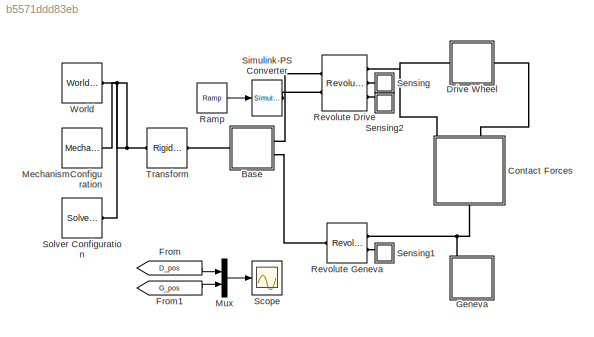
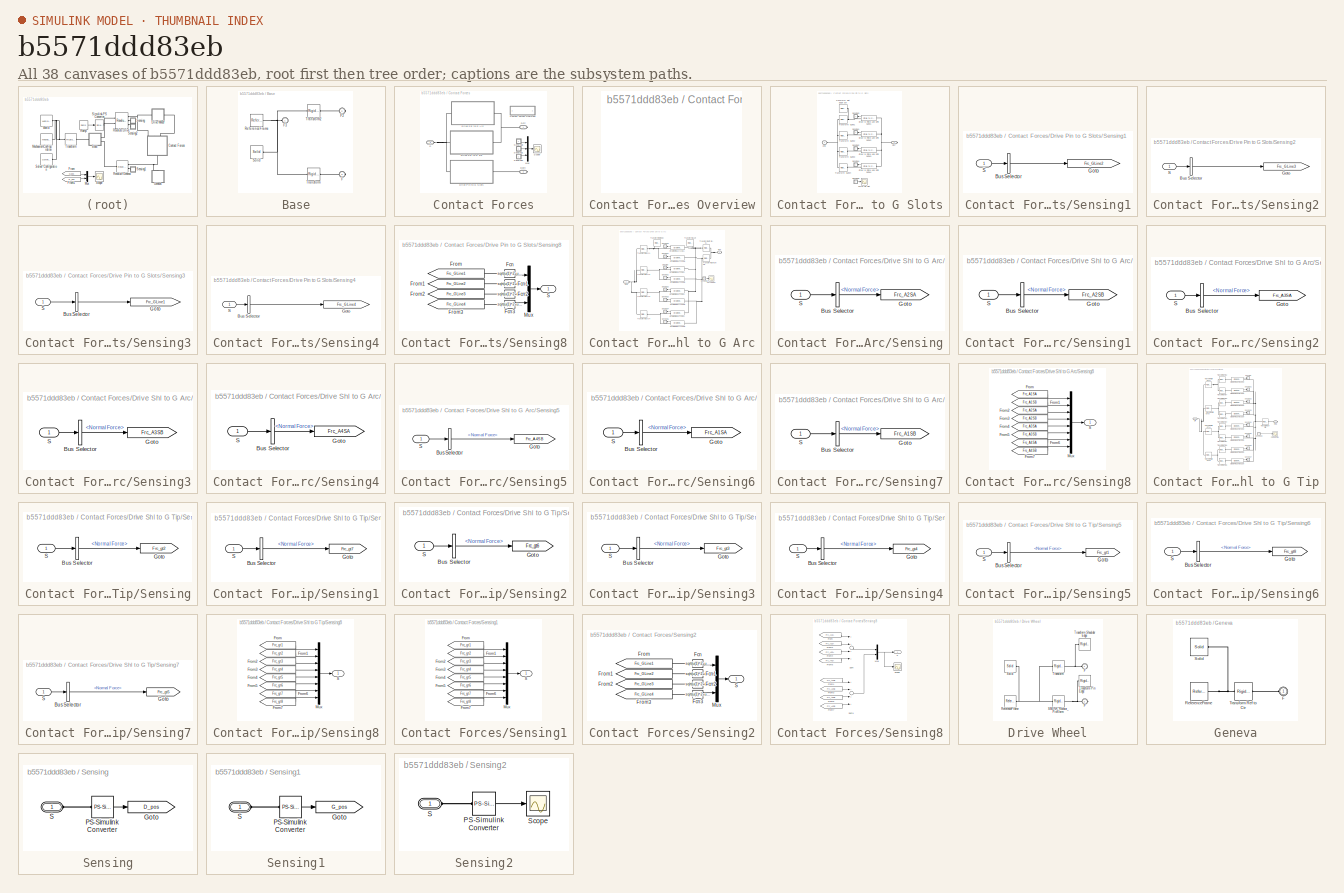
[diagram: thumbnail index - all 38 canvases of the model, root first then tree order]
MODEL slx_b5571ddd83eb
KIND model
CONFIG PostLoadFcn = set_param(bdroot,'IgnoredZcDiagnostic','none')\nwarning off sm:compiler:topologyAnalysis:DanglingBlock
CONFIG StartFcn = tic;
CONFIG StopFcn = Elapsed_Sim_Time = toc;\ndisp(['Elapsed Sim Time = ' num2str(Elapsed_Sim_Time)]);\n
BLOCK [SubSystem] Base
  Ports = [0, 0, 0, 0, 0, 1, 2]
  RequestExecContextInheritance = off
BLOCK [PMIOPort] Base/F
  Port = 3
  Side = Right
BLOCK [PMIOPort] Base/F2
  Port = 2
  Side = Right
BLOCK [PMIOPort] Base/F3
  Port = 1
  Side = Left
BLOCK [Reference] Base/ReferenceFrame  REF=sm_lib/Frames and
Transforms/Reference
Frame
  BlockFunction = simmechanics.library.frames_transforms.reference_frame
  ClassName = ReferenceFrame
  Ports = [0, 0, 0, 0, 0, 0, 1]
  SourceBlock = sm_lib/Frames and\nTransforms/Reference\nFrame
  SourceType = Reference\nFrame
BLOCK [Reference] Base/Solid  REF=sm_lib/Body Elements/Solid
  BlockFunction = simmechanics.library.body_elements.solid
  BrickDimensionUnits = m
  BrickDimensions = [1 1 1]
  CenterOfMass = [0.22415415704528135 0 -24.782168314450626]
  CenterOfMassUnits = mm
  ClassName = Solid
  CylinderLength = 1
  CylinderLengthUnits = m
  CylinderRadius = 1
  CylinderRadiusUnits = m
  Density = 1000
  DensityBased = on
  DensityUnits = kg/(m^3)
  EllipsoidRadii = [1 1 1]
  EllipsoidRadiiUnits = m
  ExtGeomFileName = Base_Default_sldprt.STL
  ExtGeomFileType = STL
  ExtGeomFileUnits = mm
  ExtrusionCrossSection = [1 1; -1 1; -1 -1; 1 -1]
  ExtrusionCrossSectionUnits = m
  ExtrusionLength = 1
  ExtrusionLengthUnits = m
  GeometryShape = FromFile
  GraphicAmbientColor = [0.15 0.15 0.15 1.0]
  GraphicDiffuseColor = [0.82745098039215681 0.82745098039215681 0.81960784313725488]
  GraphicEmissiveColor = [0.0 0.0 0.0 1.0]
  GraphicOpacity = 1
  GraphicShininess = 75
  GraphicSpecularColor = [0.5 0.5 0.5 1.0]
  GraphicType = FromGeometry
  GraphicVisPropType = SimpleVisualProperties
  InertiaType = Custom
  MarkerShape = Sphere
  MarkerSize = 10
  MarkerSizeUnits = m
  Mass = 5.6121441650895836
  MassUnits = kg
  MomentsOfInertia = [57246.923822174664 131168.16755878026 187513.90774897448]
  MomentsOfInertiaUnits = kg*mm^2
  PolygonNumSides = 3
  PolygonOuterRadius = 1
  PolygonOuterRadiusUnits = m
  Ports = [0, 0, 0, 0, 0, 0, 1]
  ProductsOfInertia = [0 -24.879239071091789 0]
  ProductsOfInertiaUnits = kg*mm^2
  RectangleSize = [1 1]
  RectangleSizeUnits = m
  RevolutionAngle = 180
  RevolutionAngleUnits = deg
  RevolutionCrossSection = [1 1; 1 -1; 2 -1; 2 1]
  RevolutionCrossSectionUnits = m
  RevolutionExtent = Full
  SourceBlock = sm_lib/Body Elements/Solid
  SourceType = Solid
  SphereRadius = 1
  SphereRadiusUnits = m
BLOCK [Reference] Base/Transform  REF=sm_lib/Frames and
Transforms/Rigid
Transform
  BaseAlignAxisA = +Y
  BaseAlignAxisB = +Z
  BlockFunction = simmechanics.library.frames_transforms.rigid_transform
  ClassName = RigidTransform
  FollAlignAxisA = +X
  FollAlignAxisB = +Y
  Ports = [0, 0, 0, 0, 0, 1, 1]
  RotationAngle = 0
  RotationAngleUnits = rad
  RotationArbitraryAxis = [0 0 0]
  RotationMethod = ArbitraryAxis
  RotationStandardAxis = +Z
  SourceBlock = sm_lib/Frames and\nTransforms/Rigid\nTransform
  SourceType = Rigid\nTransform
  TranslationCartesianOffset = [100 0 0]
  TranslationLengthUnit = mm
  TranslationMethod = Cartesian
  TranslationROffset = 0
  TranslationROffsetUnits = m
  TranslationStandardAxis = +Z
  TranslationStandardOffset = 0
  TranslationThetaOffset = 0
  TranslationThetaOffsetUnits = deg
  TranslationZOffset = 0
  TranslationZOffsetUnits = m
BLOCK [Reference] Base/Transform2  REF=sm_lib/Frames and
Transforms/Rigid
Transform
  BaseAlignAxisA = +Y
  BaseAlignAxisB = +Z
  BlockFunction = simmechanics.library.frames_transforms.rigid_transform
  ClassName = RigidTransform
  FollAlignAxisA = +X
  FollAlignAxisB = +Y
  Ports = [0, 0, 0, 0, 0, 1, 1]
  RotationAngle = 3.1415926535897931
  RotationAngleUnits = rad
  RotationArbitraryAxis = [1 0 0]
  RotationMethod = ArbitraryAxis
  RotationStandardAxis = +Z
  SourceBlock = sm_lib/Frames and\nTransforms/Rigid\nTransform
  SourceType = Rigid\nTransform
  TranslationCartesianOffset = [-99.999999999999986 0 57.42640687119286]
  TranslationLengthUnit = mm
  TranslationMethod = Cartesian
  TranslationROffset = 0
  TranslationROffsetUnits = m
  TranslationStandardAxis = +Z
  TranslationStandardOffset = 0
  TranslationThetaOffset = 0
  TranslationThetaOffsetUnits = deg
  TranslationZOffset = 0
  TranslationZOffsetUnits = m
BLOCK [SubSystem] Contact Forces
  Ports = [0, 0, 0, 0, 0, 1, 2]
  RequestExecContextInheritance = off
BLOCK [SubSystem] Contact Forces/Contact Forces Overview
  OpenFcn = web(which('Geneva_Drive_Contact_Forces.html'));
  Ports = []
  RequestExecContextInheritance = off
BLOCK [PMIOPort] Contact Forces/Dctr
  Port = 1
  Side = Right
BLOCK [PMIOPort] Contact Forces/Dpin
  Port = 2
  Side = Right
BLOCK [SubSystem] Contact Forces/Drive Pin to G Slots
  Ports = [0, 0, 0, 0, 0, 1, 1]
  RequestExecContextInheritance = off
BLOCK [PMIOPort] Contact Forces/Drive Pin to G Slots/CirF
  Port = 2
  Side = Right
BLOCK [Reference] Contact Forces/Drive Pin to G Slots/Circle to Finite Line DPin GLine1  REF=Contact_Forces_Lib/2D/Circle to Finite Line Force
  Ports = [0, 1, 0, 0, 0, 1, 1]
  SourceBlock = Contact_Forces_Lib/2D/Circle to Finite Line Force
  SourceType = Circle on Finite Line Force
  b_contact = b_contact
  circle_rad = r_drive_pin
  custom_param_1 = 1
  custom_param_2 = 1
  force_law = Linear
  friction_law = None
  k_contact = k_contact
  line_depth = d_genv_lin
  line_length = l_genv_lin
  mu_kinetic = 0.5
  mu_static = 0.7
  pen_exponent = 1
  pen_full_damp_F = 1e-4
  v_thr = 0.001
BLOCK [Reference] Contact Forces/Drive Pin to G Slots/Circle to Finite Line DPin GLine2  REF=Contact_Forces_Lib/2D/Circle to Finite Line Force
  Ports = [0, 1, 0, 0, 0, 1, 1]
  SourceBlock = Contact_Forces_Lib/2D/Circle to Finite Line Force
  SourceType = Circle on Finite Line Force
  b_contact = b_contact
  circle_rad = r_drive_pin
  custom_param_1 = 1
  custom_param_2 = 1
  force_law = Linear
  friction_law = None
  k_contact = k_contact
  line_depth = d_genv_lin
  line_length = l_genv_lin
  mu_kinetic = 0.5
  mu_static = 0.7
  pen_exponent = 1
  pen_full_damp_F = 1e-4
  v_thr = 0.001
BLOCK [Reference] Contact Forces/Drive Pin to G Slots/Circle to Finite Line DPin GLine3  REF=Contact_Forces_Lib/2D/Circle to Finite Line Force
  Ports = [0, 1, 0, 0, 0, 1, 1]
  SourceBlock = Contact_Forces_Lib/2D/Circle to Finite Line Force
  SourceType = Circle on Finite Line Force
  b_contact = b_contact
  circle_rad = r_drive_pin
  custom_param_1 = 1
  custom_param_2 = 1
  force_law = Linear
  friction_law = None
  k_contact = k_contact
  line_depth = d_genv_lin
  line_length = l_genv_lin
  mu_kinetic = 0.5
  mu_static = 0.7
  pen_exponent = 1
  pen_full_damp_F = 1e-4
  v_thr = 0.001
BLOCK [Reference] Contact Forces/Drive Pin to G Slots/Circle to Finite Line DPin GLine4  REF=Contact_Forces_Lib/2D/Circle to Finite Line Force
  Ports = [0, 1, 0, 0, 0, 1, 1]
  SourceBlock = Contact_Forces_Lib/2D/Circle to Finite Line Force
  SourceType = Circle on Finite Line Force
  b_contact = b_contact
  circle_rad = r_drive_pin
  custom_param_1 = 1
  custom_param_2 = 1
  force_law = Linear
  friction_law = None
  k_contact = k_contact
  line_depth = d_genv_lin
  line_length = l_genv_lin
  mu_kinetic = 0.5
  mu_static = 0.7
  pen_exponent = 1
  pen_full_damp_F = 1e-4
  v_thr = 0.001
BLOCK [Scope] Contact Forces/Drive Pin to G Slots/Force Pin Slot
  DataFormat = StructureWithTime
  Floating = off
  LimitDataPoints = off
  NumInputPorts = 1
  Ports = [1]
  SampleTime = 0
  ShowLegends = off
  YMax = 60
  YMin = 0
  ZoomMode = yonly
BLOCK [PMIOPort] Contact Forces/Drive Pin to G Slots/LinB
  Port = 1
  Side = Left
BLOCK [SubSystem] Contact Forces/Drive Pin to G Slots/Sensing1
  Ports = [1]
  RequestExecContextInheritance = off
BLOCK [BusSelector] Contact Forces/Drive Pin to G Slots/Sensing1/Bus Selector
  OutputAsBus = on
  OutputSignals = FCir.Fx,FCir.Fy
  Ports = [1, 1]
BLOCK [Goto] Contact Forces/Drive Pin to G Slots/Sensing1/Goto
  GotoTag = Frc_GLine2
  TagVisibility = global
BLOCK [Inport] Contact Forces/Drive Pin to G Slots/Sensing1/S
  IconDisplay = Port number
BLOCK [SubSystem] Contact Forces/Drive Pin to G Slots/Sensing2
  Ports = [1]
  RequestExecContextInheritance = off
BLOCK [BusSelector] Contact Forces/Drive Pin to G Slots/Sensing2/Bus Selector
  OutputAsBus = on
  OutputSignals = FCir.Fx,FCir.Fy
  Ports = [1, 1]
BLOCK [Goto] Contact Forces/Drive Pin to G Slots/Sensing2/Goto
  GotoTag = Frc_GLine3
  TagVisibility = global
BLOCK [Inport] Contact Forces/Drive Pin to G Slots/Sensing2/S
  IconDisplay = Port number
BLOCK [SubSystem] Contact Forces/Drive Pin to G Slots/Sensing3
  Ports = [1]
  RequestExecContextInheritance = off
BLOCK [BusSelector] Contact Forces/Drive Pin to G Slots/Sensing3/Bus Selector
  OutputAsBus = on
  OutputSignals = FCir.Fx,FCir.Fy
  Ports = [1, 1]
BLOCK [Goto] Contact Forces/Drive Pin to G Slots/Sensing3/Goto
  GotoTag = Frc_GLine1
  TagVisibility = global
BLOCK [Inport] Contact Forces/Drive Pin to G Slots/Sensing3/S
  IconDisplay = Port number
BLOCK [SubSystem] Contact Forces/Drive Pin to G Slots/Sensing4
  Ports = [1]
  RequestExecContextInheritance = off
BLOCK [BusSelector] Contact Forces/Drive Pin to G Slots/Sensing4/Bus Selector
  OutputAsBus = on
  OutputSignals = FCir.Fx,FCir.Fy
  Ports = [1, 1]
BLOCK [Goto] Contact Forces/Drive Pin to G Slots/Sensing4/Goto
  GotoTag = Frc_GLine4
  TagVisibility = global
BLOCK [Inport] Contact Forces/Drive Pin to G Slots/Sensing4/S
  IconDisplay = Port number
BLOCK [SubSystem] Contact Forces/Drive Pin to G Slots/Sensing8
  Ports = [0, 1]
  RequestExecContextInheritance = off
BLOCK [Fcn] Contact Forces/Drive Pin to G Slots/Sensing8/Fcn
  Expr = sqrt(u(1)^2+u(2)^2)
BLOCK [Fcn] Contact Forces/Drive Pin to G Slots/Sensing8/Fcn1
  Expr = sqrt(u(1)^2+u(2)^2)
BLOCK [Fcn] Contact Forces/Drive Pin to G Slots/Sensing8/Fcn2
  Expr = sqrt(u(1)^2+u(2)^2)
BLOCK [Fcn] Contact Forces/Drive Pin to G Slots/Sensing8/Fcn3
  Expr = sqrt(u(1)^2+u(2)^2)
BLOCK [From] Contact Forces/Drive Pin to G Slots/Sensing8/From
  GotoTag = Frc_GLine1
  TagVisibility = global
BLOCK [From] Contact Forces/Drive Pin to G Slots/Sensing8/From1
  GotoTag = Frc_GLine2
  TagVisibility = global
BLOCK [From] Contact Forces/Drive Pin to G Slots/Sensing8/From2
  GotoTag = Frc_GLine3
  TagVisibility = global
BLOCK [From] Contact Forces/Drive Pin to G Slots/Sensing8/From3
  GotoTag = Frc_GLine4
  TagVisibility = global
BLOCK [Mux] Contact Forces/Drive Pin to G Slots/Sensing8/Mux
  DisplayOption = bar
  Ports = [4, 1]
BLOCK [Outport] Contact Forces/Drive Pin to G Slots/Sensing8/S
  IconDisplay = Port number
BLOCK [Reference] Contact Forces/Drive Pin to G Slots/Transform GLine1  REF=sm_lib/Frames and
Transforms/Rigid
Transform
  BaseAlignAxisA = +Y
  BaseAlignAxisB = +Z
  BlockFunction = simmechanics.library.frames_transforms.rigid_transform
  ClassName = RigidTransform
  FollAlignAxisA = +X
  FollAlignAxisB = +Y
  Ports = [0, 0, 0, 0, 0, 1, 1]
  RotationAngle = 315
  RotationAngleUnits = deg
  RotationArbitraryAxis = [0 0 1]
  RotationMethod = StandardAxis
  RotationStandardAxis = +Z
  SourceBlock = sm_lib/Frames and\nTransforms/Rigid\nTransform
  SourceType = Rigid\nTransform
  TranslationCartesianOffset = [0 0 0]
  TranslationLengthUnit = m
  TranslationMethod = Cylindrical
  TranslationROffset = -0.02
  TranslationROffsetUnits = m
  TranslationStandardAxis = +Z
  TranslationStandardOffset = 0
  TranslationThetaOffset = 315
  TranslationThetaOffsetUnits = deg
  TranslationZOffset = 0
  TranslationZOffsetUnits = m
BLOCK [Reference] Contact Forces/Drive Pin to G Slots/Transform GLine2  REF=sm_lib/Frames and
Transforms/Rigid
Transform
  BaseAlignAxisA = +Y
  BaseAlignAxisB = +Z
  BlockFunction = simmechanics.library.frames_transforms.rigid_transform
  ClassName = RigidTransform
  FollAlignAxisA = +X
  FollAlignAxisB = +Y
  Ports = [0, 0, 0, 0, 0, 1, 1]
  RotationAngle = 135
  RotationAngleUnits = deg
  RotationArbitraryAxis = [0 0 1]
  RotationMethod = StandardAxis
  RotationStandardAxis = +Z
  SourceBlock = sm_lib/Frames and\nTransforms/Rigid\nTransform
  SourceType = Rigid\nTransform
  TranslationCartesianOffset = [0 0 0]
  TranslationLengthUnit = m
  TranslationMethod = Cylindrical
  TranslationROffset = -0.02
  TranslationROffsetUnits = m
  TranslationStandardAxis = +Z
  TranslationStandardOffset = 0
  TranslationThetaOffset = 135
  TranslationThetaOffsetUnits = deg
  TranslationZOffset = 0
  TranslationZOffsetUnits = m
BLOCK [Reference] Contact Forces/Drive Pin to G Slots/Transform GLine3  REF=sm_lib/Frames and
Transforms/Rigid
Transform
  BaseAlignAxisA = +Y
  BaseAlignAxisB = +Z
  BlockFunction = simmechanics.library.frames_transforms.rigid_transform
  ClassName = RigidTransform
  FollAlignAxisA = +X
  FollAlignAxisB = +Y
  Ports = [0, 0, 0, 0, 0, 1, 1]
  RotationAngle = 225
  RotationAngleUnits = deg
  RotationArbitraryAxis = [0 0 1]
  RotationMethod = StandardAxis
  RotationStandardAxis = +Z
  SourceBlock = sm_lib/Frames and\nTransforms/Rigid\nTransform
  SourceType = Rigid\nTransform
  TranslationCartesianOffset = [0 0 0]
  TranslationLengthUnit = m
  TranslationMethod = Cylindrical
  TranslationROffset = -0.02
  TranslationROffsetUnits = m
  TranslationStandardAxis = +Z
  TranslationStandardOffset = 0
  TranslationThetaOffset = 225
  TranslationThetaOffsetUnits = deg
  TranslationZOffset = 0
  TranslationZOffsetUnits = m
BLOCK [Reference] Contact Forces/Drive Pin to G Slots/Transform GLine4  REF=sm_lib/Frames and
Transforms/Rigid
Transform
  BaseAlignAxisA = +Y
  BaseAlignAxisB = +Z
  BlockFunction = simmechanics.library.frames_transforms.rigid_transform
  ClassName = RigidTransform
  FollAlignAxisA = +X
  FollAlignAxisB = +Y
  Ports = [0, 0, 0, 0, 0, 1, 1]
  RotationAngle = 45
  RotationAngleUnits = deg
  RotationArbitraryAxis = [0 0 1]
  RotationMethod = StandardAxis
  RotationStandardAxis = +Z
  SourceBlock = sm_lib/Frames and\nTransforms/Rigid\nTransform
  SourceType = Rigid\nTransform
  TranslationCartesianOffset = [0 0 0]
  TranslationLengthUnit = m
  TranslationMethod = Cylindrical
  TranslationROffset = -0.02
  TranslationROffsetUnits = m
  TranslationStandardAxis = +Z
  TranslationStandardOffset = 0
  TranslationThetaOffset = 45
  TranslationThetaOffsetUnits = deg
  TranslationZOffset = 0
  TranslationZOffsetUnits = m
BLOCK [Reference] Contact Forces/Drive Pin to G Slots/Transform Slot Edge SW  REF=sm_lib/Frames and
Transforms/Rigid
Transform
  BaseAlignAxisA = +Y
  BaseAlignAxisB = +Z
  BlockFunction = simmechanics.library.frames_transforms.rigid_transform
  ClassName = RigidTransform
  FollAlignAxisA = +X
  FollAlignAxisB = +Y
  Ports = [0, 0, 0, 0, 0, 1, 1]
  RotationAngle = 45
  RotationAngleUnits = deg
  RotationArbitraryAxis = [0 0 1]
  RotationMethod = None
  RotationStandardAxis = +Z
  SourceBlock = sm_lib/Frames and\nTransforms/Rigid\nTransform
  SourceType = Rigid\nTransform
  TranslationCartesianOffset = [0 0 0]
  TranslationLengthUnit = m
  TranslationMethod = StandardAxis
  TranslationROffset = 0
  TranslationROffsetUnits = m
  TranslationStandardAxis = +X
  TranslationStandardOffset = 0.005
  TranslationThetaOffset = 0
  TranslationThetaOffsetUnits = deg
  TranslationZOffset = 0
  TranslationZOffsetUnits = m
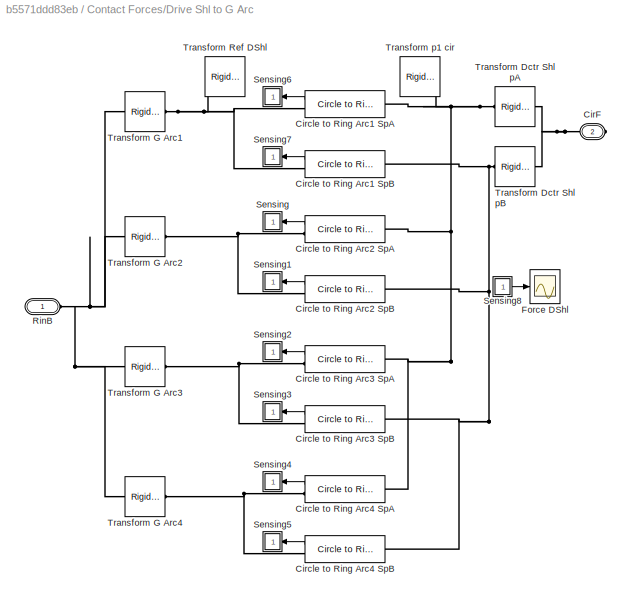
BLOCK [SubSystem] Contact Forces/Drive Shl to G Arc
  Ports = [0, 0, 0, 0, 0, 1, 1]
  RequestExecContextInheritance = off
BLOCK [PMIOPort] Contact Forces/Drive Shl to G Arc/CirF
  Port = 2
  Side = Right
BLOCK [Reference] Contact Forces/Drive Shl to G Arc/Circle to Ring Arc1 SpA   REF=Contact_Forces_Lib/2D/Circle to Ring Force
  Ports = [0, 1, 0, 0, 0, 1, 1]
  SourceBlock = Contact_Forces_Lib/2D/Circle to Ring Force
  SourceType = Circle to Ring Force
  active_angle = [-45 45]
  b_contact = b_contact
  custom_param_1 = 1
  custom_param_2 = 1
  d_ring = d_genv_xcir
  force_law = Linear
  friction_law = None
  k_contact = k_contact
  mu_kinetic = 0.5
  mu_static = 0.7
  pen_exponent = 1
  pen_full_damp_F = 1e-4
  radius_circle = r_shld_cir
  radius_ring = r_genv_xcir+d_genv_xcir/2
  v_thr = 0.001
BLOCK [Reference] Contact Forces/Drive Shl to G Arc/Circle to Ring Arc1 SpB  REF=Contact_Forces_Lib/2D/Circle to Ring Force
  Ports = [0, 1, 0, 0, 0, 1, 1]
  SourceBlock = Contact_Forces_Lib/2D/Circle to Ring Force
  SourceType = Circle to Ring Force
  active_angle = [-45 45]
  b_contact = b_contact
  custom_param_1 = 1
  custom_param_2 = 1
  d_ring = d_genv_xcir
  force_law = Linear
  friction_law = None
  k_contact = k_contact
  mu_kinetic = 0.5
  mu_static = 0.7
  pen_exponent = 1
  pen_full_damp_F = 1e-4
  radius_circle = r_shld_cir
  radius_ring = r_genv_xcir+d_genv_xcir/2
  v_thr = 0.001
BLOCK [Reference] Contact Forces/Drive Shl to G Arc/Circle to Ring Arc2 SpA  REF=Contact_Forces_Lib/2D/Circle to Ring Force
  Ports = [0, 1, 0, 0, 0, 1, 1]
  SourceBlock = Contact_Forces_Lib/2D/Circle to Ring Force
  SourceType = Circle to Ring Force
  active_angle = [-45 45]
  b_contact = b_contact
  custom_param_1 = 1
  custom_param_2 = 1
  d_ring = d_genv_xcir
  force_law = Linear
  friction_law = None
  k_contact = k_contact
  mu_kinetic = 0.5
  mu_static = 0.7
  pen_exponent = 1
  pen_full_damp_F = 1e-4
  radius_circle = r_shld_cir
  radius_ring = r_genv_xcir+d_genv_xcir/2
  v_thr = 0.001
BLOCK [Reference] Contact Forces/Drive Shl to G Arc/Circle to Ring Arc2 SpB  REF=Contact_Forces_Lib/2D/Circle to Ring Force
  Ports = [0, 1, 0, 0, 0, 1, 1]
  SourceBlock = Contact_Forces_Lib/2D/Circle to Ring Force
  SourceType = Circle to Ring Force
  active_angle = [-45 45]
  b_contact = b_contact
  custom_param_1 = 1
  custom_param_2 = 1
  d_ring = d_genv_xcir
  force_law = Linear
  friction_law = None
  k_contact = k_contact
  mu_kinetic = 0.5
  mu_static = 0.7
  pen_exponent = 1
  pen_full_damp_F = 1e-4
  radius_circle = r_shld_cir
  radius_ring = r_genv_xcir+d_genv_xcir/2
  v_thr = 0.001
BLOCK [Reference] Contact Forces/Drive Shl to G Arc/Circle to Ring Arc3 SpA  REF=Contact_Forces_Lib/2D/Circle to Ring Force
  Ports = [0, 1, 0, 0, 0, 1, 1]
  SourceBlock = Contact_Forces_Lib/2D/Circle to Ring Force
  SourceType = Circle to Ring Force
  active_angle = [-45 45]
  b_contact = b_contact
  custom_param_1 = 1
  custom_param_2 = 1
  d_ring = d_genv_xcir
  force_law = Linear
  friction_law = None
  k_contact = k_contact
  mu_kinetic = 0.5
  mu_static = 0.7
  pen_exponent = 1
  pen_full_damp_F = 1e-4
  radius_circle = r_shld_cir
  radius_ring = r_genv_xcir+d_genv_xcir/2
  v_thr = 0.001
BLOCK [Reference] Contact Forces/Drive Shl to G Arc/Circle to Ring Arc3 SpB  REF=Contact_Forces_Lib/2D/Circle to Ring Force
  Ports = [0, 1, 0, 0, 0, 1, 1]
  SourceBlock = Contact_Forces_Lib/2D/Circle to Ring Force
  SourceType = Circle to Ring Force
  active_angle = [-45 45]
  b_contact = b_contact
  custom_param_1 = 1
  custom_param_2 = 1
  d_ring = d_genv_xcir
  force_law = Linear
  friction_law = None
  k_contact = k_contact
  mu_kinetic = 0.5
  mu_static = 0.7
  pen_exponent = 1
  pen_full_damp_F = 1e-4
  radius_circle = r_shld_cir
  radius_ring = r_genv_xcir+d_genv_xcir/2
  v_thr = 0.001
BLOCK [Reference] Contact Forces/Drive Shl to G Arc/Circle to Ring Arc4 SpA  REF=Contact_Forces_Lib/2D/Circle to Ring Force
  Ports = [0, 1, 0, 0, 0, 1, 1]
  SourceBlock = Contact_Forces_Lib/2D/Circle to Ring Force
  SourceType = Circle to Ring Force
  active_angle = [-45 45]
  b_contact = b_contact
  custom_param_1 = 1
  custom_param_2 = 1
  d_ring = d_genv_xcir
  force_law = Linear
  friction_law = None
  k_contact = k_contact
  mu_kinetic = 0.5
  mu_static = 0.7
  pen_exponent = 1
  pen_full_damp_F = 1e-4
  radius_circle = r_shld_cir
  radius_ring = r_genv_xcir+d_genv_xcir/2
  v_thr = 0.001
BLOCK [Reference] Contact Forces/Drive Shl to G Arc/Circle to Ring Arc4 SpB  REF=Contact_Forces_Lib/2D/Circle to Ring Force
  Ports = [0, 1, 0, 0, 0, 1, 1]
  SourceBlock = Contact_Forces_Lib/2D/Circle to Ring Force
  SourceType = Circle to Ring Force
  active_angle = [-45 45]
  b_contact = b_contact
  custom_param_1 = 1
  custom_param_2 = 1
  d_ring = d_genv_xcir
  force_law = Linear
  friction_law = None
  k_contact = k_contact
  mu_kinetic = 0.5
  mu_static = 0.7
  pen_exponent = 1
  pen_full_damp_F = 1e-4
  radius_circle = r_shld_cir
  radius_ring = r_genv_xcir+d_genv_xcir/2
  v_thr = 0.001
BLOCK [Scope] Contact Forces/Drive Shl to G Arc/Force DShl
  DataFormat = StructureWithTime
  Floating = off
  LimitDataPoints = off
  NumInputPorts = 1
  Ports = [1]
  SampleTime = 0
  SaveName = ScopeData4
  ShowLegends = off
  TimeRange = 30
  YMax = 0
  YMin = -25
  ZoomMode = xonly
BLOCK [PMIOPort] Contact Forces/Drive Shl to G Arc/RinB
  Port = 1
  Side = Left
BLOCK [SubSystem] Contact Forces/Drive Shl to G Arc/Sensing
  Ports = [1]
  RequestExecContextInheritance = off
BLOCK [BusSelector] Contact Forces/Drive Shl to G Arc/Sensing/Bus Selector
  OutputSignals = Normal Force
  Ports = [1, 1]
BLOCK [Goto] Contact Forces/Drive Shl to G Arc/Sensing/Goto
  GotoTag = Frc_A2SA
  TagVisibility = global
BLOCK [Inport] Contact Forces/Drive Shl to G Arc/Sensing/S
  IconDisplay = Port number
BLOCK [SubSystem] Contact Forces/Drive Shl to G Arc/Sensing1
  Ports = [1]
  RequestExecContextInheritance = off
BLOCK [BusSelector] Contact Forces/Drive Shl to G Arc/Sensing1/Bus Selector
  OutputSignals = Normal Force
  Ports = [1, 1]
BLOCK [Goto] Contact Forces/Drive Shl to G Arc/Sensing1/Goto
  GotoTag = Frc_A2SB
  TagVisibility = global
BLOCK [Inport] Contact Forces/Drive Shl to G Arc/Sensing1/S
  IconDisplay = Port number
BLOCK [SubSystem] Contact Forces/Drive Shl to G Arc/Sensing2
  Ports = [1]
  RequestExecContextInheritance = off
BLOCK [BusSelector] Contact Forces/Drive Shl to G Arc/Sensing2/Bus Selector
  OutputSignals = Normal Force
  Ports = [1, 1]
BLOCK [Goto] Contact Forces/Drive Shl to G Arc/Sensing2/Goto
  GotoTag = Frc_A3SA
  TagVisibility = global
BLOCK [Inport] Contact Forces/Drive Shl to G Arc/Sensing2/S
  IconDisplay = Port number
BLOCK [SubSystem] Contact Forces/Drive Shl to G Arc/Sensing3
  Ports = [1]
  RequestExecContextInheritance = off
BLOCK [BusSelector] Contact Forces/Drive Shl to G Arc/Sensing3/Bus Selector
  OutputSignals = Normal Force
  Ports = [1, 1]
BLOCK [Goto] Contact Forces/Drive Shl to G Arc/Sensing3/Goto
  GotoTag = Frc_A3SB
  TagVisibility = global
BLOCK [Inport] Contact Forces/Drive Shl to G Arc/Sensing3/S
  IconDisplay = Port number
BLOCK [SubSystem] Contact Forces/Drive Shl to G Arc/Sensing4
  Ports = [1]
  RequestExecContextInheritance = off
BLOCK [BusSelector] Contact Forces/Drive Shl to G Arc/Sensing4/Bus Selector
  OutputSignals = Normal Force
  Ports = [1, 1]
BLOCK [Goto] Contact Forces/Drive Shl to G Arc/Sensing4/Goto
  GotoTag = Frc_A4SA
  TagVisibility = global
BLOCK [Inport] Contact Forces/Drive Shl to G Arc/Sensing4/S
  IconDisplay = Port number
BLOCK [SubSystem] Contact Forces/Drive Shl to G Arc/Sensing5
  Ports = [1]
  RequestExecContextInheritance = off
BLOCK [BusSelector] Contact Forces/Drive Shl to G Arc/Sensing5/Bus Selector
  OutputSignals = Normal Force
  Ports = [1, 1]
BLOCK [Goto] Contact Forces/Drive Shl to G Arc/Sensing5/Goto
  GotoTag = Frc_A4SB
  TagVisibility = global
BLOCK [Inport] Contact Forces/Drive Shl to G Arc/Sensing5/S
  IconDisplay = Port number
BLOCK [SubSystem] Contact Forces/Drive Shl to G Arc/Sensing6
  Ports = [1]
  RequestExecContextInheritance = off
BLOCK [BusSelector] Contact Forces/Drive Shl to G Arc/Sensing6/Bus Selector
  OutputSignals = Normal Force
  Ports = [1, 1]
BLOCK [Goto] Contact Forces/Drive Shl to G Arc/Sensing6/Goto
  GotoTag = Frc_A1SA
  TagVisibility = global
BLOCK [Inport] Contact Forces/Drive Shl to G Arc/Sensing6/S
  IconDisplay = Port number
BLOCK [SubSystem] Contact Forces/Drive Shl to G Arc/Sensing7
  Ports = [1]
  RequestExecContextInheritance = off
BLOCK [BusSelector] Contact Forces/Drive Shl to G Arc/Sensing7/Bus Selector
  OutputSignals = Normal Force
  Ports = [1, 1]
BLOCK [Goto] Contact Forces/Drive Shl to G Arc/Sensing7/Goto
  GotoTag = Frc_A1SB
  TagVisibility = global
BLOCK [Inport] Contact Forces/Drive Shl to G Arc/Sensing7/S
  IconDisplay = Port number
BLOCK [SubSystem] Contact Forces/Drive Shl to G Arc/Sensing8
  Ports = [0, 1]
  RequestExecContextInheritance = off
BLOCK [From] Contact Forces/Drive Shl to G Arc/Sensing8/From
  GotoTag = Frc_A1SA
  TagVisibility = global
BLOCK [From] Contact Forces/Drive Shl to G Arc/Sensing8/From1
  GotoTag = Frc_A1SB
  TagVisibility = global
BLOCK [From] Contact Forces/Drive Shl to G Arc/Sensing8/From2
  GotoTag = Frc_A2SA
  TagVisibility = global
BLOCK [From] Contact Forces/Drive Shl to G Arc/Sensing8/From3
  GotoTag = Frc_A2SB
  TagVisibility = global
BLOCK [From] Contact Forces/Drive Shl to G Arc/Sensing8/From4
  GotoTag = Frc_A3SA
  TagVisibility = global
BLOCK [From] Contact Forces/Drive Shl to G Arc/Sensing8/From5
  GotoTag = Frc_A3SB
  TagVisibility = global
BLOCK [From] Contact Forces/Drive Shl to G Arc/Sensing8/From6
  GotoTag = Frc_A4SA
  TagVisibility = global
BLOCK [From] Contact Forces/Drive Shl to G Arc/Sensing8/From7
  GotoTag = Frc_A4SB
  TagVisibility = global
BLOCK [Mux] Contact Forces/Drive Shl to G Arc/Sensing8/Mux
  DisplayOption = bar
  Inputs = 8
  Ports = [8, 1]
BLOCK [Outport] Contact Forces/Drive Shl to G Arc/Sensing8/S
  IconDisplay = Port number
BLOCK [Reference] Contact Forces/Drive Shl to G Arc/Transform Dctr Shl pA  REF=sm_lib/Frames and
Transforms/Rigid
Transform
  BaseAlignAxisA = +Y
  BaseAlignAxisB = +Z
  BlockFunction = simmechanics.library.frames_transforms.rigid_transform
  ClassName = RigidTransform
  FollAlignAxisA = +X
  FollAlignAxisB = +Y
  Ports = [0, 0, 0, 0, 0, 1, 1]
  RotationAngle = 180
  RotationAngleUnits = deg
  RotationArbitraryAxis = [0 0 1]
  RotationMethod = None
  RotationStandardAxis = +X
  SourceBlock = sm_lib/Frames and\nTransforms/Rigid\nTransform
  SourceType = Rigid\nTransform
  TranslationCartesianOffset = [0 0 0]
  TranslationLengthUnit = m
  TranslationMethod = StandardAxis
  TranslationROffset = 0
  TranslationROffsetUnits = m
  TranslationStandardAxis = +X
  TranslationStandardOffset = r_genv_xcir-r_shld_cir
  TranslationThetaOffset = 0
  TranslationThetaOffsetUnits = deg
  TranslationZOffset = 0
  TranslationZOffsetUnits = m
BLOCK [Reference] Contact Forces/Drive Shl to G Arc/Transform Dctr Shl pB  REF=sm_lib/Frames and
Transforms/Rigid
Transform
  BaseAlignAxisA = +Y
  BaseAlignAxisB = +Z
  BlockFunction = simmechanics.library.frames_transforms.rigid_transform
  ClassName = RigidTransform
  FollAlignAxisA = +X
  FollAlignAxisB = +Y
  Ports = [0, 0, 0, 0, 0, 1, 1]
  RotationAngle = 180
  RotationAngleUnits = deg
  RotationArbitraryAxis = [0 0 1]
  RotationMethod = None
  RotationStandardAxis = +Z
  SourceBlock = sm_lib/Frames and\nTransforms/Rigid\nTransform
  SourceType = Rigid\nTransform
  TranslationCartesianOffset = [0 0 0]
  TranslationLengthUnit = m
  TranslationMethod = StandardAxis
  TranslationROffset = 0
  TranslationROffsetUnits = m
  TranslationStandardAxis = -Y
  TranslationStandardOffset = r_genv_xcir-r_shld_cir
  TranslationThetaOffset = 0
  TranslationThetaOffsetUnits = deg
  TranslationZOffset = 0
  TranslationZOffsetUnits = m
BLOCK [Reference] Contact Forces/Drive Shl to G Arc/Transform G Arc1  REF=sm_lib/Frames and
Transforms/Rigid
Transform
  BaseAlignAxisA = +Y
  BaseAlignAxisB = +Z
  BlockFunction = simmechanics.library.frames_transforms.rigid_transform
  ClassName = RigidTransform
  FollAlignAxisA = +X
  FollAlignAxisB = +Y
  Ports = [0, 0, 0, 0, 0, 1, 1]
  RotationAngle = -90
  RotationAngleUnits = deg
  RotationArbitraryAxis = [0 0 1]
  RotationMethod = StandardAxis
  RotationStandardAxis = +Z
  SourceBlock = sm_lib/Frames and\nTransforms/Rigid\nTransform
  SourceType = Rigid\nTransform
  TranslationCartesianOffset = [0 0 0]
  TranslationLengthUnit = m
  TranslationMethod = StandardAxis
  TranslationROffset = 0
  TranslationROffsetUnits = m
  TranslationStandardAxis = +Y
  TranslationStandardOffset = d_genv_ctr_to_xcir
  TranslationThetaOffset = 0
  TranslationThetaOffsetUnits = deg
  TranslationZOffset = 0
  TranslationZOffsetUnits = m
BLOCK [Reference] Contact Forces/Drive Shl to G Arc/Transform G Arc2  REF=sm_lib/Frames and
Transforms/Rigid
Transform
  BaseAlignAxisA = +Y
  BaseAlignAxisB = +Z
  BlockFunction = simmechanics.library.frames_transforms.rigid_transform
  ClassName = RigidTransform
  FollAlignAxisA = +X
  FollAlignAxisB = +Y
  Ports = [0, 0, 0, 0, 0, 1, 1]
  RotationAngle = 180
  RotationAngleUnits = deg
  RotationArbitraryAxis = [0 0 1]
  RotationMethod = StandardAxis
  RotationStandardAxis = +Z
  SourceBlock = sm_lib/Frames and\nTransforms/Rigid\nTransform
  SourceType = Rigid\nTransform
  TranslationCartesianOffset = [0 0 0]
  TranslationLengthUnit = m
  TranslationMethod = StandardAxis
  TranslationROffset = 0
  TranslationROffsetUnits = m
  TranslationStandardAxis = +X
  TranslationStandardOffset = d_genv_ctr_to_xcir
  TranslationThetaOffset = 0
  TranslationThetaOffsetUnits = deg
  TranslationZOffset = 0
  TranslationZOffsetUnits = m
BLOCK [Reference] Contact Forces/Drive Shl to G Arc/Transform G Arc3  REF=sm_lib/Frames and
Transforms/Rigid
Transform
  BaseAlignAxisA = +Y
  BaseAlignAxisB = +Z
  BlockFunction = simmechanics.library.frames_transforms.rigid_transform
  ClassName = RigidTransform
  FollAlignAxisA = +X
  FollAlignAxisB = +Y
  Ports = [0, 0, 0, 0, 0, 1, 1]
  RotationAngle = 90
  RotationAngleUnits = deg
  RotationArbitraryAxis = [0 0 1]
  RotationMethod = StandardAxis
  RotationStandardAxis = +Z
  SourceBlock = sm_lib/Frames and\nTransforms/Rigid\nTransform
  SourceType = Rigid\nTransform
  TranslationCartesianOffset = [0 0 0]
  TranslationLengthUnit = m
  TranslationMethod = StandardAxis
  TranslationROffset = 0
  TranslationROffsetUnits = m
  TranslationStandardAxis = -Y
  TranslationStandardOffset = d_genv_ctr_to_xcir
  TranslationThetaOffset = 0
  TranslationThetaOffsetUnits = deg
  TranslationZOffset = 0
  TranslationZOffsetUnits = m
BLOCK [Reference] Contact Forces/Drive Shl to G Arc/Transform G Arc4  REF=sm_lib/Frames and
Transforms/Rigid
Transform
  BaseAlignAxisA = +Y
  BaseAlignAxisB = +Z
  BlockFunction = simmechanics.library.frames_transforms.rigid_transform
  ClassName = RigidTransform
  FollAlignAxisA = +X
  FollAlignAxisB = +Y
  Ports = [0, 0, 0, 0, 0, 1, 1]
  RotationAngle = 0
  RotationAngleUnits = deg
  RotationArbitraryAxis = [0 0 1]
  RotationMethod = StandardAxis
  RotationStandardAxis = +Z
  SourceBlock = sm_lib/Frames and\nTransforms/Rigid\nTransform
  SourceType = Rigid\nTransform
  TranslationCartesianOffset = [0 0 0]
  TranslationLengthUnit = m
  TranslationMethod = StandardAxis
  TranslationROffset = 0
  TranslationROffsetUnits = m
  TranslationStandardAxis = -X
  TranslationStandardOffset = d_genv_ctr_to_xcir
  TranslationThetaOffset = 0
  TranslationThetaOffsetUnits = deg
  TranslationZOffset = 0
  TranslationZOffsetUnits = m
BLOCK [Reference] Contact Forces/Drive Shl to G Arc/Transform Ref DShl  REF=sm_lib/Frames and
Transforms/Rigid
Transform
  BaseAlignAxisA = +Y
  BaseAlignAxisB = +Z
  BlockFunction = simmechanics.library.frames_transforms.rigid_transform
  ClassName = RigidTransform
  FollAlignAxisA = +X
  FollAlignAxisB = +Y
  Ports = [0, 0, 0, 0, 0, 1, 1]
  RotationAngle = 0
  RotationAngleUnits = deg
  RotationArbitraryAxis = [0 0 1]
  RotationMethod = None
  RotationStandardAxis = +Z
  SourceBlock = sm_lib/Frames and\nTransforms/Rigid\nTransform
  SourceType = Rigid\nTransform
  TranslationCartesianOffset = [0 0 0]
  TranslationLengthUnit = m
  TranslationMethod = StandardAxis
  TranslationROffset = 0
  TranslationROffsetUnits = m
  TranslationStandardAxis = +X
  TranslationStandardOffset = r_genv_xcir
  TranslationThetaOffset = 0
  TranslationThetaOffsetUnits = deg
  TranslationZOffset = 0
  TranslationZOffsetUnits = m
BLOCK [Reference] Contact Forces/Drive Shl to G Arc/Transform p1 cir  REF=sm_lib/Frames and
Transforms/Rigid
Transform
  BaseAlignAxisA = +Y
  BaseAlignAxisB = +Z
  BlockFunction = simmechanics.library.frames_transforms.rigid_transform
  ClassName = RigidTransform
  FollAlignAxisA = +X
  FollAlignAxisB = +Y
  Ports = [0, 0, 0, 0, 0, 1, 1]
  RotationAngle = 0
  RotationAngleUnits = deg
  RotationArbitraryAxis = [0 0 1]
  RotationMethod = None
  RotationStandardAxis = +Z
  SourceBlock = sm_lib/Frames and\nTransforms/Rigid\nTransform
  SourceType = Rigid\nTransform
  TranslationCartesianOffset = [0 0 0]
  TranslationLengthUnit = m
  TranslationMethod = StandardAxis
  TranslationROffset = 0
  TranslationROffsetUnits = m
  TranslationStandardAxis = +X
  TranslationStandardOffset = r_shld_cir
  TranslationThetaOffset = 0
  TranslationThetaOffsetUnits = deg
  TranslationZOffset = 0
  TranslationZOffsetUnits = m
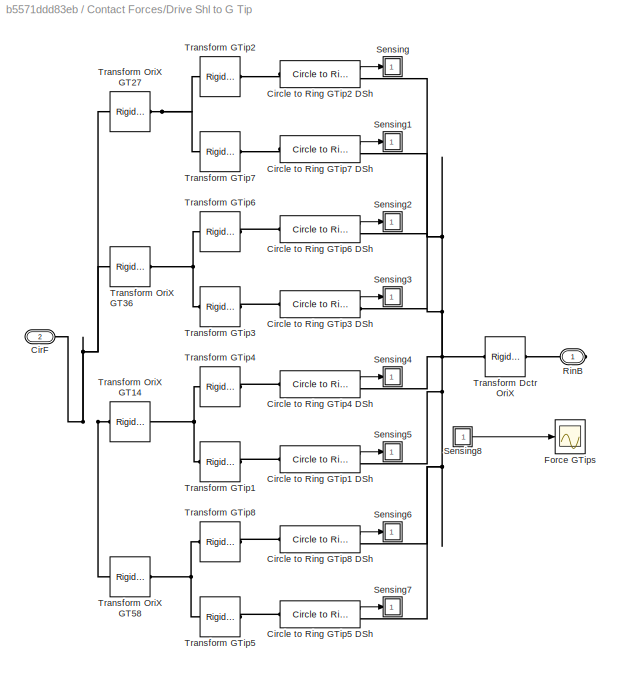
BLOCK [SubSystem] Contact Forces/Drive Shl to G Tip
  Ports = [0, 0, 0, 0, 0, 1, 1]
  RequestExecContextInheritance = off
BLOCK [PMIOPort] Contact Forces/Drive Shl to G Tip/CirF
  Port = 2
  Side = Left
BLOCK [Reference] Contact Forces/Drive Shl to G Tip/Circle to Ring GTip1 DSh  REF=Contact_Forces_Lib/2D/Circle to Ring Force
  Ports = [0, 1, 0, 0, 0, 1, 1]
  SourceBlock = Contact_Forces_Lib/2D/Circle to Ring Force
  SourceType = Circle to Ring Force
  active_angle = [-90 180]
  b_contact = b_contact
  custom_param_1 = 1
  custom_param_2 = 1
  d_ring = d_shld
  force_law = Linear
  friction_law = None
  k_contact = k_contact
  mu_kinetic = 0.5
  mu_static = 0.7
  pen_exponent = 1
  pen_full_damp_F = 1e-4
  radius_circle = r_genv_cir
  radius_ring = r_shld-d_shld/2
  v_thr = 0.001
BLOCK [Reference] Contact Forces/Drive Shl to G Tip/Circle to Ring GTip2 DSh  REF=Contact_Forces_Lib/2D/Circle to Ring Force
  Ports = [0, 1, 0, 0, 0, 1, 1]
  SourceBlock = Contact_Forces_Lib/2D/Circle to Ring Force
  SourceType = Circle to Ring Force
  active_angle = [-90 180]
  b_contact = b_contact
  custom_param_1 = 1
  custom_param_2 = 1
  d_ring = d_shld
  force_law = Linear
  friction_law = None
  k_contact = k_contact
  mu_kinetic = 0.5
  mu_static = 0.7
  pen_exponent = 1
  pen_full_damp_F = 1e-4
  radius_circle = r_genv_cir
  radius_ring = r_shld-d_shld/2
  v_thr = 0.001
BLOCK [Reference] Contact Forces/Drive Shl to G Tip/Circle to Ring GTip3 DSh  REF=Contact_Forces_Lib/2D/Circle to Ring Force
  Ports = [0, 1, 0, 0, 0, 1, 1]
  SourceBlock = Contact_Forces_Lib/2D/Circle to Ring Force
  SourceType = Circle to Ring Force
  active_angle = [-90 180]
  b_contact = b_contact
  custom_param_1 = 1
  custom_param_2 = 1
  d_ring = d_shld
  force_law = Linear
  friction_law = None
  k_contact = k_contact
  mu_kinetic = 0.5
  mu_static = 0.7
  pen_exponent = 1
  pen_full_damp_F = 1e-4
  radius_circle = r_genv_cir
  radius_ring = r_shld-d_shld/2
  v_thr = 0.001
BLOCK [Reference] Contact Forces/Drive Shl to G Tip/Circle to Ring GTip4 DSh  REF=Contact_Forces_Lib/2D/Circle to Ring Force
  Ports = [0, 1, 0, 0, 0, 1, 1]
  SourceBlock = Contact_Forces_Lib/2D/Circle to Ring Force
  SourceType = Circle to Ring Force
  active_angle = [-90 180]
  b_contact = b_contact
  custom_param_1 = 1
  custom_param_2 = 1
  d_ring = d_shld
  force_law = Linear
  friction_law = None
  k_contact = k_contact
  mu_kinetic = 0.5
  mu_static = 0.7
  pen_exponent = 1
  pen_full_damp_F = 1e-4
  radius_circle = r_genv_cir
  radius_ring = r_shld-d_shld/2
  v_thr = 0.001
BLOCK [Reference] Contact Forces/Drive Shl to G Tip/Circle to Ring GTip5 DSh  REF=Contact_Forces_Lib/2D/Circle to Ring Force
  Ports = [0, 1, 0, 0, 0, 1, 1]
  SourceBlock = Contact_Forces_Lib/2D/Circle to Ring Force
  SourceType = Circle to Ring Force
  active_angle = [-90 180]
  b_contact = b_contact
  custom_param_1 = 1
  custom_param_2 = 1
  d_ring = d_shld
  force_law = Linear
  friction_law = None
  k_contact = k_contact
  mu_kinetic = 0.5
  mu_static = 0.7
  pen_exponent = 1
  pen_full_damp_F = 1e-4
  radius_circle = r_genv_cir
  radius_ring = r_shld-d_shld/2
  v_thr = 0.001
BLOCK [Reference] Contact Forces/Drive Shl to G Tip/Circle to Ring GTip6 DSh  REF=Contact_Forces_Lib/2D/Circle to Ring Force
  Ports = [0, 1, 0, 0, 0, 1, 1]
  SourceBlock = Contact_Forces_Lib/2D/Circle to Ring Force
  SourceType = Circle to Ring Force
  active_angle = [-90 180]
  b_contact = b_contact
  custom_param_1 = 1
  custom_param_2 = 1
  d_ring = d_shld
  force_law = Linear
  friction_law = None
  k_contact = k_contact
  mu_kinetic = 0.5
  mu_static = 0.7
  pen_exponent = 1
  pen_full_damp_F = 1e-4
  radius_circle = r_genv_cir
  radius_ring = r_shld-d_shld/2
  v_thr = 0.001
BLOCK [Reference] Contact Forces/Drive Shl to G Tip/Circle to Ring GTip7 DSh  REF=Contact_Forces_Lib/2D/Circle to Ring Force
  Ports = [0, 1, 0, 0, 0, 1, 1]
  SourceBlock = Contact_Forces_Lib/2D/Circle to Ring Force
  SourceType = Circle to Ring Force
  active_angle = [-90 180]
  b_contact = b_contact
  custom_param_1 = 1
  custom_param_2 = 1
  d_ring = d_shld
  force_law = Linear
  friction_law = None
  k_contact = k_contact
  mu_kinetic = 0.5
  mu_static = 0.7
  pen_exponent = 1
  pen_full_damp_F = 1e-4
  radius_circle = r_genv_cir
  radius_ring = r_shld-d_shld/2
  v_thr = 0.001
BLOCK [Reference] Contact Forces/Drive Shl to G Tip/Circle to Ring GTip8 DSh  REF=Contact_Forces_Lib/2D/Circle to Ring Force
  Ports = [0, 1, 0, 0, 0, 1, 1]
  SourceBlock = Contact_Forces_Lib/2D/Circle to Ring Force
  SourceType = Circle to Ring Force
  active_angle = [-90 180]
  b_contact = b_contact
  custom_param_1 = 1
  custom_param_2 = 1
  d_ring = d_shld
  force_law = Linear
  friction_law = None
  k_contact = k_contact
  mu_kinetic = 0.5
  mu_static = 0.7
  pen_exponent = 1
  pen_full_damp_F = 1e-4
  radius_circle = r_genv_cir
  radius_ring = r_shld-d_shld/2
  v_thr = 0.001
BLOCK [Scope] Contact Forces/Drive Shl to G Tip/Force GTips
  DataFormat = StructureWithTime
  Floating = off
  LimitDataPoints = off
  NumInputPorts = 1
  Ports = [1]
  SampleTime = 0
  SaveName = ScopeData2
  ShowLegends = off
  TimeRange = 30
  YMax = 0.9
  YMin = 0
  ZoomMode = yonly
BLOCK [PMIOPort] Contact Forces/Drive Shl to G Tip/RinB
  Port = 1
  Side = Right
BLOCK [SubSystem] Contact Forces/Drive Shl to G Tip/Sensing
  Ports = [1]
  RequestExecContextInheritance = off
BLOCK [BusSelector] Contact Forces/Drive Shl to G Tip/Sensing/Bus Selector
  OutputSignals = Normal Force
  Ports = [1, 1]
BLOCK [Goto] Contact Forces/Drive Shl to G Tip/Sensing/Goto
  GotoTag = Frc_gt2
  TagVisibility = global
BLOCK [Inport] Contact Forces/Drive Shl to G Tip/Sensing/S
  IconDisplay = Port number
BLOCK [SubSystem] Contact Forces/Drive Shl to G Tip/Sensing1
  Ports = [1]
  RequestExecContextInheritance = off
BLOCK [BusSelector] Contact Forces/Drive Shl to G Tip/Sensing1/Bus Selector
  OutputSignals = Normal Force
  Ports = [1, 1]
BLOCK [Goto] Contact Forces/Drive Shl to G Tip/Sensing1/Goto
  GotoTag = Frc_gt7
  TagVisibility = global
BLOCK [Inport] Contact Forces/Drive Shl to G Tip/Sensing1/S
  IconDisplay = Port number
BLOCK [SubSystem] Contact Forces/Drive Shl to G Tip/Sensing2
  Ports = [1]
  RequestExecContextInheritance = off
BLOCK [BusSelector] Contact Forces/Drive Shl to G Tip/Sensing2/Bus Selector
  OutputSignals = Normal Force
  Ports = [1, 1]
BLOCK [Goto] Contact Forces/Drive Shl to G Tip/Sensing2/Goto
  GotoTag = Frc_gt6
  TagVisibility = global
BLOCK [Inport] Contact Forces/Drive Shl to G Tip/Sensing2/S
  IconDisplay = Port number
BLOCK [SubSystem] Contact Forces/Drive Shl to G Tip/Sensing3
  Ports = [1]
  RequestExecContextInheritance = off
BLOCK [BusSelector] Contact Forces/Drive Shl to G Tip/Sensing3/Bus Selector
  OutputSignals = Normal Force
  Ports = [1, 1]
BLOCK [Goto] Contact Forces/Drive Shl to G Tip/Sensing3/Goto
  GotoTag = Frc_gt3
  TagVisibility = global
BLOCK [Inport] Contact Forces/Drive Shl to G Tip/Sensing3/S
  IconDisplay = Port number
BLOCK [SubSystem] Contact Forces/Drive Shl to G Tip/Sensing4
  Ports = [1]
  RequestExecContextInheritance = off
BLOCK [BusSelector] Contact Forces/Drive Shl to G Tip/Sensing4/Bus Selector
  OutputSignals = Normal Force
  Ports = [1, 1]
BLOCK [Goto] Contact Forces/Drive Shl to G Tip/Sensing4/Goto
  GotoTag = Frc_gt4
  TagVisibility = global
BLOCK [Inport] Contact Forces/Drive Shl to G Tip/Sensing4/S
  IconDisplay = Port number
BLOCK [SubSystem] Contact Forces/Drive Shl to G Tip/Sensing5
  Ports = [1]
  RequestExecContextInheritance = off
BLOCK [BusSelector] Contact Forces/Drive Shl to G Tip/Sensing5/Bus Selector
  OutputSignals = Normal Force
  Ports = [1, 1]
BLOCK [Goto] Contact Forces/Drive Shl to G Tip/Sensing5/Goto
  GotoTag = Frc_gt1
  TagVisibility = global
BLOCK [Inport] Contact Forces/Drive Shl to G Tip/Sensing5/S
  IconDisplay = Port number
BLOCK [SubSystem] Contact Forces/Drive Shl to G Tip/Sensing6
  Ports = [1]
  RequestExecContextInheritance = off
BLOCK [BusSelector] Contact Forces/Drive Shl to G Tip/Sensing6/Bus Selector
  OutputSignals = Normal Force
  Ports = [1, 1]
BLOCK [Goto] Contact Forces/Drive Shl to G Tip/Sensing6/Goto
  GotoTag = Frc_gt8
  TagVisibility = global
BLOCK [Inport] Contact Forces/Drive Shl to G Tip/Sensing6/S
  IconDisplay = Port number
BLOCK [SubSystem] Contact Forces/Drive Shl to G Tip/Sensing7
  Ports = [1]
  RequestExecContextInheritance = off
BLOCK [BusSelector] Contact Forces/Drive Shl to G Tip/Sensing7/Bus Selector
  OutputSignals = Normal Force
  Ports = [1, 1]
BLOCK [Goto] Contact Forces/Drive Shl to G Tip/Sensing7/Goto
  GotoTag = Frc_gt5
  TagVisibility = global
BLOCK [Inport] Contact Forces/Drive Shl to G Tip/Sensing7/S
  IconDisplay = Port number
BLOCK [SubSystem] Contact Forces/Drive Shl to G Tip/Sensing8
  Ports = [0, 1]
  RequestExecContextInheritance = off
BLOCK [From] Contact Forces/Drive Shl to G Tip/Sensing8/From
  GotoTag = Frc_gt1
  TagVisibility = global
BLOCK [From] Contact Forces/Drive Shl to G Tip/Sensing8/From1
  GotoTag = Frc_gt2
  TagVisibility = global
BLOCK [From] Contact Forces/Drive Shl to G Tip/Sensing8/From2
  GotoTag = Frc_gt3
  TagVisibility = global
BLOCK [From] Contact Forces/Drive Shl to G Tip/Sensing8/From3
  GotoTag = Frc_gt4
  TagVisibility = global
BLOCK [From] Contact Forces/Drive Shl to G Tip/Sensing8/From4
  GotoTag = Frc_gt5
  TagVisibility = global
BLOCK [From] Contact Forces/Drive Shl to G Tip/Sensing8/From5
  GotoTag = Frc_gt6
  TagVisibility = global
BLOCK [From] Contact Forces/Drive Shl to G Tip/Sensing8/From6
  GotoTag = Frc_gt7
  TagVisibility = global
BLOCK [From] Contact Forces/Drive Shl to G Tip/Sensing8/From7
  GotoTag = Frc_gt8
  TagVisibility = global
BLOCK [Mux] Contact Forces/Drive Shl to G Tip/Sensing8/Mux
  DisplayOption = bar
  Inputs = 8
  Ports = [8, 1]
BLOCK [Outport] Contact Forces/Drive Shl to G Tip/Sensing8/S
  IconDisplay = Port number
BLOCK [Reference] Contact Forces/Drive Shl to G Tip/Transform Dctr OriX  REF=sm_lib/Frames and
Transforms/Rigid
Transform
  BaseAlignAxisA = -X
  BaseAlignAxisB = -Z
  BlockFunction = simmechanics.library.frames_transforms.rigid_transform
  ClassName = RigidTransform
  FollAlignAxisA = +X
  FollAlignAxisB = +Z
  Ports = [0, 0, 0, 0, 0, 1, 1]
  RotationAngle = 180
  RotationAngleUnits = deg
  RotationArbitraryAxis = [0 0 1]
  RotationMethod = AlignedAxes
  RotationStandardAxis = +Z
  SourceBlock = sm_lib/Frames and\nTransforms/Rigid\nTransform
  SourceType = Rigid\nTransform
  TranslationCartesianOffset = [0 0 0]
  TranslationLengthUnit = m
  TranslationMethod = None
  TranslationROffset = 0
  TranslationROffsetUnits = m
  TranslationStandardAxis = +Z
  TranslationStandardOffset = 0
  TranslationThetaOffset = 0
  TranslationThetaOffsetUnits = deg
  TranslationZOffset = 0
  TranslationZOffsetUnits = m
BLOCK [Reference] Contact Forces/Drive Shl to G Tip/Transform GTip1  REF=sm_lib/Frames and
Transforms/Rigid
Transform
  BaseAlignAxisA = +Y
  BaseAlignAxisB = +Z
  BlockFunction = simmechanics.library.frames_transforms.rigid_transform
  ClassName = RigidTransform
  FollAlignAxisA = +X
  FollAlignAxisB = +Y
  Ports = [0, 0, 0, 0, 0, 1, 1]
  RotationAngle = 45
  RotationAngleUnits = deg
  RotationArbitraryAxis = [0 0 1]
  RotationMethod = None
  RotationStandardAxis = +Z
  SourceBlock = sm_lib/Frames and\nTransforms/Rigid\nTransform
  SourceType = Rigid\nTransform
  TranslationCartesianOffset = [-0.022 -0.139 0]
  TranslationLengthUnit = m
  TranslationMethod = Cartesian
  TranslationROffset = 0
  TranslationROffsetUnits = m
  TranslationStandardAxis = +Y
  TranslationStandardOffset = 0.1405
  TranslationThetaOffset = 0
  TranslationThetaOffsetUnits = deg
  TranslationZOffset = 0
  TranslationZOffsetUnits = m
BLOCK [Reference] Contact Forces/Drive Shl to G Tip/Transform GTip2  REF=sm_lib/Frames and
Transforms/Rigid
Transform
  BaseAlignAxisA = +Y
  BaseAlignAxisB = +Z
  BlockFunction = simmechanics.library.frames_transforms.rigid_transform
  ClassName = RigidTransform
  FollAlignAxisA = +X
  FollAlignAxisB = +Y
  Ports = [0, 0, 0, 0, 0, 1, 1]
  RotationAngle = 45
  RotationAngleUnits = deg
  RotationArbitraryAxis = [0 0 1]
  RotationMethod = None
  RotationStandardAxis = +Z
  SourceBlock = sm_lib/Frames and\nTransforms/Rigid\nTransform
  SourceType = Rigid\nTransform
  TranslationCartesianOffset = [-0.022 0.139 0]
  TranslationLengthUnit = m
  TranslationMethod = Cartesian
  TranslationROffset = 0
  TranslationROffsetUnits = m
  TranslationStandardAxis = +Y
  TranslationStandardOffset = 0.1405
  TranslationThetaOffset = 0
  TranslationThetaOffsetUnits = deg
  TranslationZOffset = 0
  TranslationZOffsetUnits = m
BLOCK [Reference] Contact Forces/Drive Shl to G Tip/Transform GTip3  REF=sm_lib/Frames and
Transforms/Rigid
Transform
  BaseAlignAxisA = +Y
  BaseAlignAxisB = +Z
  BlockFunction = simmechanics.library.frames_transforms.rigid_transform
  ClassName = RigidTransform
  FollAlignAxisA = +X
  FollAlignAxisB = +Y
  Ports = [0, 0, 0, 0, 0, 1, 1]
  RotationAngle = 45
  RotationAngleUnits = deg
  RotationArbitraryAxis = [0 0 1]
  RotationMethod = None
  RotationStandardAxis = +Z
  SourceBlock = sm_lib/Frames and\nTransforms/Rigid\nTransform
  SourceType = Rigid\nTransform
  TranslationCartesianOffset = [-0.022 -0.139 0]
  TranslationLengthUnit = m
  TranslationMethod = Cartesian
  TranslationROffset = 0
  TranslationROffsetUnits = m
  TranslationStandardAxis = +Y
  TranslationStandardOffset = 0.1405
  TranslationThetaOffset = 0
  TranslationThetaOffsetUnits = deg
  TranslationZOffset = 0
  TranslationZOffsetUnits = m
BLOCK [Reference] Contact Forces/Drive Shl to G Tip/Transform GTip4  REF=sm_lib/Frames and
Transforms/Rigid
Transform
  BaseAlignAxisA = +Y
  BaseAlignAxisB = +Z
  BlockFunction = simmechanics.library.frames_transforms.rigid_transform
  ClassName = RigidTransform
  FollAlignAxisA = +X
  FollAlignAxisB = +Y
  Ports = [0, 0, 0, 0, 0, 1, 1]
  RotationAngle = 45
  RotationAngleUnits = deg
  RotationArbitraryAxis = [0 0 1]
  RotationMethod = None
  RotationStandardAxis = +Z
  SourceBlock = sm_lib/Frames and\nTransforms/Rigid\nTransform
  SourceType = Rigid\nTransform
  TranslationCartesianOffset = [-0.022 0.139 0]
  TranslationLengthUnit = m
  TranslationMethod = Cartesian
  TranslationROffset = 0
  TranslationROffsetUnits = m
  TranslationStandardAxis = +Y
  TranslationStandardOffset = 0.1405
  TranslationThetaOffset = 0
  TranslationThetaOffsetUnits = deg
  TranslationZOffset = 0
  TranslationZOffsetUnits = m
BLOCK [Reference] Contact Forces/Drive Shl to G Tip/Transform GTip5  REF=sm_lib/Frames and
Transforms/Rigid
Transform
  BaseAlignAxisA = +Y
  BaseAlignAxisB = +Z
  BlockFunction = simmechanics.library.frames_transforms.rigid_transform
  ClassName = RigidTransform
  FollAlignAxisA = +X
  FollAlignAxisB = +Y
  Ports = [0, 0, 0, 0, 0, 1, 1]
  RotationAngle = 45
  RotationAngleUnits = deg
  RotationArbitraryAxis = [0 0 1]
  RotationMethod = None
  RotationStandardAxis = +Z
  SourceBlock = sm_lib/Frames and\nTransforms/Rigid\nTransform
  SourceType = Rigid\nTransform
  TranslationCartesianOffset = [-0.022 -0.139 0]
  TranslationLengthUnit = m
  TranslationMethod = Cartesian
  TranslationROffset = 0
  TranslationROffsetUnits = m
  TranslationStandardAxis = +Y
  TranslationStandardOffset = 0.1405
  TranslationThetaOffset = 0
  TranslationThetaOffsetUnits = deg
  TranslationZOffset = 0
  TranslationZOffsetUnits = m
BLOCK [Reference] Contact Forces/Drive Shl to G Tip/Transform GTip6  REF=sm_lib/Frames and
Transforms/Rigid
Transform
  BaseAlignAxisA = +Y
  BaseAlignAxisB = +Z
  BlockFunction = simmechanics.library.frames_transforms.rigid_transform
  ClassName = RigidTransform
  FollAlignAxisA = +X
  FollAlignAxisB = +Y
  Ports = [0, 0, 0, 0, 0, 1, 1]
  RotationAngle = 45
  RotationAngleUnits = deg
  RotationArbitraryAxis = [0 0 1]
  RotationMethod = None
  RotationStandardAxis = +Z
  SourceBlock = sm_lib/Frames and\nTransforms/Rigid\nTransform
  SourceType = Rigid\nTransform
  TranslationCartesianOffset = [-0.022 0.139 0]
  TranslationLengthUnit = m
  TranslationMethod = Cartesian
  TranslationROffset = 0
  TranslationROffsetUnits = m
  TranslationStandardAxis = +Y
  TranslationStandardOffset = 0.1405
  TranslationThetaOffset = 0
  TranslationThetaOffsetUnits = deg
  TranslationZOffset = 0
  TranslationZOffsetUnits = m
BLOCK [Reference] Contact Forces/Drive Shl to G Tip/Transform GTip7  REF=sm_lib/Frames and
Transforms/Rigid
Transform
  BaseAlignAxisA = +Y
  BaseAlignAxisB = +Z
  BlockFunction = simmechanics.library.frames_transforms.rigid_transform
  ClassName = RigidTransform
  FollAlignAxisA = +X
  FollAlignAxisB = +Y
  Ports = [0, 0, 0, 0, 0, 1, 1]
  RotationAngle = 45
  RotationAngleUnits = deg
  RotationArbitraryAxis = [0 0 1]
  RotationMethod = None
  RotationStandardAxis = +Z
  SourceBlock = sm_lib/Frames and\nTransforms/Rigid\nTransform
  SourceType = Rigid\nTransform
  TranslationCartesianOffset = [-0.022 -0.139 0]
  TranslationLengthUnit = m
  TranslationMethod = Cartesian
  TranslationROffset = 0
  TranslationROffsetUnits = m
  TranslationStandardAxis = +Y
  TranslationStandardOffset = 0.1405
  TranslationThetaOffset = 0
  TranslationThetaOffsetUnits = deg
  TranslationZOffset = 0
  TranslationZOffsetUnits = m
BLOCK [Reference] Contact Forces/Drive Shl to G Tip/Transform GTip8  REF=sm_lib/Frames and
Transforms/Rigid
Transform
  BaseAlignAxisA = +Y
  BaseAlignAxisB = +Z
  BlockFunction = simmechanics.library.frames_transforms.rigid_transform
  ClassName = RigidTransform
  FollAlignAxisA = +X
  FollAlignAxisB = +Y
  Ports = [0, 0, 0, 0, 0, 1, 1]
  RotationAngle = 45
  RotationAngleUnits = deg
  RotationArbitraryAxis = [0 0 1]
  RotationMethod = None
  RotationStandardAxis = +Z
  SourceBlock = sm_lib/Frames and\nTransforms/Rigid\nTransform
  SourceType = Rigid\nTransform
  TranslationCartesianOffset = [-0.022 0.139 0]
  TranslationLengthUnit = m
  TranslationMethod = Cartesian
  TranslationROffset = 0
  TranslationROffsetUnits = m
  TranslationStandardAxis = +Y
  TranslationStandardOffset = 0.1405
  TranslationThetaOffset = 0
  TranslationThetaOffsetUnits = deg
  TranslationZOffset = 0
  TranslationZOffsetUnits = m
BLOCK [Reference] Contact Forces/Drive Shl to G Tip/Transform OriX GT14  REF=sm_lib/Frames and
Transforms/Rigid
Transform
  BaseAlignAxisA = +Y
  BaseAlignAxisB = +Z
  BlockFunction = simmechanics.library.frames_transforms.rigid_transform
  ClassName = RigidTransform
  FollAlignAxisA = +X
  FollAlignAxisB = +Y
  Ports = [0, 0, 0, 0, 0, 1, 1]
  RotationAngle = 225
  RotationAngleUnits = deg
  RotationArbitraryAxis = [0 0 1]
  RotationMethod = StandardAxis
  RotationStandardAxis = +Z
  SourceBlock = sm_lib/Frames and\nTransforms/Rigid\nTransform
  SourceType = Rigid\nTransform
  TranslationCartesianOffset = [0 0 0]
  TranslationLengthUnit = m
  TranslationMethod = None
  TranslationROffset = 0
  TranslationROffsetUnits = m
  TranslationStandardAxis = +Z
  TranslationStandardOffset = 0
  TranslationThetaOffset = 0
  TranslationThetaOffsetUnits = deg
  TranslationZOffset = 0
  TranslationZOffsetUnits = m
BLOCK [Reference] Contact Forces/Drive Shl to G Tip/Transform OriX GT27  REF=sm_lib/Frames and
Transforms/Rigid
Transform
  BaseAlignAxisA = +Y
  BaseAlignAxisB = +Z
  BlockFunction = simmechanics.library.frames_transforms.rigid_transform
  ClassName = RigidTransform
  FollAlignAxisA = +X
  FollAlignAxisB = +Y
  Ports = [0, 0, 0, 0, 0, 1, 1]
  RotationAngle = 315
  RotationAngleUnits = deg
  RotationArbitraryAxis = [0 0 1]
  RotationMethod = StandardAxis
  RotationStandardAxis = +Z
  SourceBlock = sm_lib/Frames and\nTransforms/Rigid\nTransform
  SourceType = Rigid\nTransform
  TranslationCartesianOffset = [0 0 0]
  TranslationLengthUnit = m
  TranslationMethod = None
  TranslationROffset = 0
  TranslationROffsetUnits = m
  TranslationStandardAxis = +Z
  TranslationStandardOffset = 0
  TranslationThetaOffset = 0
  TranslationThetaOffsetUnits = deg
  TranslationZOffset = 0
  TranslationZOffsetUnits = m
BLOCK [Reference] Contact Forces/Drive Shl to G Tip/Transform OriX GT36  REF=sm_lib/Frames and
Transforms/Rigid
Transform
  BaseAlignAxisA = +Y
  BaseAlignAxisB = +Z
  BlockFunction = simmechanics.library.frames_transforms.rigid_transform
  ClassName = RigidTransform
  FollAlignAxisA = +X
  FollAlignAxisB = +Y
  Ports = [0, 0, 0, 0, 0, 1, 1]
  RotationAngle = 135
  RotationAngleUnits = deg
  RotationArbitraryAxis = [0 0 1]
  RotationMethod = StandardAxis
  RotationStandardAxis = +Z
  SourceBlock = sm_lib/Frames and\nTransforms/Rigid\nTransform
  SourceType = Rigid\nTransform
  TranslationCartesianOffset = [0 0 0]
  TranslationLengthUnit = m
  TranslationMethod = None
  TranslationROffset = 0
  TranslationROffsetUnits = m
  TranslationStandardAxis = +Z
  TranslationStandardOffset = 0
  TranslationThetaOffset = 0
  TranslationThetaOffsetUnits = deg
  TranslationZOffset = 0
  TranslationZOffsetUnits = m
BLOCK [Reference] Contact Forces/Drive Shl to G Tip/Transform OriX GT58  REF=sm_lib/Frames and
Transforms/Rigid
Transform
  BaseAlignAxisA = +Y
  BaseAlignAxisB = +Z
  BlockFunction = simmechanics.library.frames_transforms.rigid_transform
  ClassName = RigidTransform
  FollAlignAxisA = +X
  FollAlignAxisB = +Y
  Ports = [0, 0, 0, 0, 0, 1, 1]
  RotationAngle = 45
  RotationAngleUnits = deg
  RotationArbitraryAxis = [0 0 1]
  RotationMethod = StandardAxis
  RotationStandardAxis = +Z
  SourceBlock = sm_lib/Frames and\nTransforms/Rigid\nTransform
  SourceType = Rigid\nTransform
  TranslationCartesianOffset = [0 0 0]
  TranslationLengthUnit = m
  TranslationMethod = None
  TranslationROffset = 0
  TranslationROffsetUnits = m
  TranslationStandardAxis = +Z
  TranslationStandardOffset = 0
  TranslationThetaOffset = 0
  TranslationThetaOffsetUnits = deg
  TranslationZOffset = 0
  TranslationZOffsetUnits = m
BLOCK [PMIOPort] Contact Forces/G
  Port = 3
  Side = Left
BLOCK [Mux] Contact Forces/Mux
  DisplayOption = bar
  Inputs = 3
  Ports = [3, 1]
BLOCK [Scope] Contact Forces/Scope
  DataFormat = StructureWithTime
  Floating = off
  LimitDataPoints = off
  NumInputPorts = 1
  Ports = [1]
  SampleTime = 0
  SaveName = ScopeData5
  ShowLegends = off
  YMax = 60
  YMin = -10
  ZoomMode = yonly
BLOCK [SubSystem] Contact Forces/Sensing1
  Ports = [0, 1]
  RequestExecContextInheritance = off
BLOCK [From] Contact Forces/Sensing1/From
  GotoTag = Frc_gt1
  TagVisibility = global
BLOCK [From] Contact Forces/Sensing1/From1
  GotoTag = Frc_gt2
  TagVisibility = global
BLOCK [From] Contact Forces/Sensing1/From2
  GotoTag = Frc_gt3
  TagVisibility = global
BLOCK [From] Contact Forces/Sensing1/From3
  GotoTag = Frc_gt4
  TagVisibility = global
BLOCK [From] Contact Forces/Sensing1/From4
  GotoTag = Frc_gt5
  TagVisibility = global
BLOCK [From] Contact Forces/Sensing1/From5
  GotoTag = Frc_gt6
  TagVisibility = global
BLOCK [From] Contact Forces/Sensing1/From6
  GotoTag = Frc_gt7
  TagVisibility = global
BLOCK [From] Contact Forces/Sensing1/From7
  GotoTag = Frc_gt8
  TagVisibility = global
BLOCK [Mux] Contact Forces/Sensing1/Mux
  DisplayOption = bar
  Inputs = 8
  Ports = [8, 1]
BLOCK [Outport] Contact Forces/Sensing1/S
  IconDisplay = Port number
BLOCK [SubSystem] Contact Forces/Sensing2
  Ports = [0, 1]
  RequestExecContextInheritance = off
BLOCK [Fcn] Contact Forces/Sensing2/Fcn
  Expr = sqrt(u(1)^2+u(2)^2)
BLOCK [Fcn] Contact Forces/Sensing2/Fcn1
  Expr = sqrt(u(1)^2+u(2)^2)
BLOCK [Fcn] Contact Forces/Sensing2/Fcn2
  Expr = sqrt(u(1)^2+u(2)^2)
BLOCK [Fcn] Contact Forces/Sensing2/Fcn3
  Expr = sqrt(u(1)^2+u(2)^2)
BLOCK [From] Contact Forces/Sensing2/From
  GotoTag = Frc_GLine1
  TagVisibility = global
BLOCK [From] Contact Forces/Sensing2/From1
  GotoTag = Frc_GLine2
  TagVisibility = global
BLOCK [From] Contact Forces/Sensing2/From2
  GotoTag = Frc_GLine3
  TagVisibility = global
BLOCK [From] Contact Forces/Sensing2/From3
  GotoTag = Frc_GLine4
  TagVisibility = global
BLOCK [Mux] Contact Forces/Sensing2/Mux
  DisplayOption = bar
  Ports = [4, 1]
BLOCK [Outport] Contact Forces/Sensing2/S
  IconDisplay = Port number
BLOCK [SubSystem] Contact Forces/Sensing8
  Ports = [0, 1]
  RequestExecContextInheritance = off
BLOCK [From] Contact Forces/Sensing8/From
  GotoTag = Frc_A1SA
  TagVisibility = global
BLOCK [From] Contact Forces/Sensing8/From1
  GotoTag = Frc_A1SB
  TagVisibility = global
BLOCK [From] Contact Forces/Sensing8/From2
  GotoTag = Frc_A2SA
  TagVisibility = global
BLOCK [From] Contact Forces/Sensing8/From3
  GotoTag = Frc_A2SB
  TagVisibility = global
BLOCK [From] Contact Forces/Sensing8/From4
  GotoTag = Frc_A3SA
  TagVisibility = global
BLOCK [From] Contact Forces/Sensing8/From5
  GotoTag = Frc_A3SB
  TagVisibility = global
BLOCK [From] Contact Forces/Sensing8/From6
  GotoTag = Frc_A4SA
  TagVisibility = global
BLOCK [From] Contact Forces/Sensing8/From7
  GotoTag = Frc_A4SB
  TagVisibility = global
BLOCK [Mux] Contact Forces/Sensing8/Mux
  DisplayOption = bar
  Inputs = 2
  Ports = [2, 1]
BLOCK [Outport] Contact Forces/Sensing8/S
  IconDisplay = Port number
BLOCK [Scope] Contact Forces/Sensing8/Scope
  Floating = off
  LimitDataPoints = off
  NumInputPorts = 1
  Ports = [1]
  SaveName = ScopeData6
  ShowLegends = off
  TimeRange = 30
  YMax = 0
  YMin = -0.4
  ZoomMode = xonly
BLOCK [Sum] Contact Forces/Sensing8/Sum
  InputSameDT = off
  Inputs = ++++
  OutDataTypeStr = Inherit: Inherit via internal rule
  Ports = [4, 1]
  SaturateOnIntegerOverflow = off
BLOCK [Sum] Contact Forces/Sensing8/Sum1
  InputSameDT = off
  Inputs = ++++
  OutDataTypeStr = Inherit: Inherit via internal rule
  Ports = [4, 1]
  SaturateOnIntegerOverflow = off
BLOCK [SubSystem] Drive Wheel
  Ports = [0, 0, 0, 0, 0, 1, 1]
  RequestExecContextInheritance = off
BLOCK [PMIOPort] Drive Wheel/F
  Port = 1
  Side = Left
BLOCK [PMIOPort] Drive Wheel/P
  Port = 2
  Side = Right
BLOCK [Reference] Drive Wheel/ReferenceFrame  REF=sm_lib/Frames and
Transforms/Reference
Frame
  BlockFunction = simmechanics.library.frames_transforms.reference_frame
  ClassName = ReferenceFrame
  Ports = [0, 0, 0, 0, 0, 0, 1]
  SourceBlock = sm_lib/Frames and\nTransforms/Reference\nFrame
  SourceType = Reference\nFrame
BLOCK [Reference] Drive Wheel/SMLINK_Rotator_PinXform  REF=sm_lib/Frames and
Transforms/Rigid
Transform
  BaseAlignAxisA = +Y
  BaseAlignAxisB = +Z
  BlockFunction = simmechanics.library.frames_transforms.rigid_transform
  ClassName = RigidTransform
  FollAlignAxisA = +X
  FollAlignAxisB = +Y
  Ports = [0, 0, 0, 0, 0, 1, 1]
  RotationAngle = 10
  RotationAngleUnits = deg
  RotationArbitraryAxis = [0 0 1]
  RotationMethod = StandardAxis
  RotationStandardAxis = +Z
  SourceBlock = sm_lib/Frames and\nTransforms/Rigid\nTransform
  SourceType = Rigid\nTransform
  TranslationCartesianOffset = [0 99.999999999999943 1.0000000000000009]
  TranslationLengthUnit = mm
  TranslationMethod = Cartesian
  TranslationROffset = 0
  TranslationROffsetUnits = m
  TranslationStandardAxis = +Z
  TranslationStandardOffset = 0
  TranslationThetaOffset = 0
  TranslationThetaOffsetUnits = deg
  TranslationZOffset = 0
  TranslationZOffsetUnits = m
BLOCK [Reference] Drive Wheel/Solid  REF=sm_lib/Body Elements/Solid
  BlockFunction = simmechanics.library.body_elements.solid
  BrickDimensionUnits = m
  BrickDimensions = [1 1 1]
  CenterOfMass = [-103.32572655678197 -3.3257265567819814 0.56035000006051983]
  CenterOfMassUnits = mm
  ClassName = Solid
  CylinderLength = 1
  CylinderLengthUnits = m
  CylinderRadius = 1
  CylinderRadiusUnits = m
  Density = 1000
  DensityBased = on
  DensityUnits = kg/(m^3)
  EllipsoidRadii = [1 1 1]
  EllipsoidRadiiUnits = m
  ExtGeomFileName = Drive_Wheel_Default_sldprt.STL
  ExtGeomFileType = STL
  ExtGeomFileUnits = mm
  ExtrusionCrossSection = [1 1; -1 1; -1 -1; 1 -1]
  ExtrusionCrossSectionUnits = m
  ExtrusionLength = 1
  ExtrusionLengthUnits = m
  GeometryShape = FromFile
  GraphicAmbientColor = [0.15 0.15 0.15 1.0]
  GraphicDiffuseColor = [0.2 0.4 1.0]
  GraphicEmissiveColor = [0.0 0.0 0.0 1.0]
  GraphicOpacity = 1
  GraphicShininess = 75
  GraphicSpecularColor = [0.5 0.5 0.5 1.0]
  GraphicType = FromGeometry
  GraphicVisPropType = SimpleVisualProperties
  InertiaType = Custom
  MarkerShape = Sphere
  MarkerSize = 10
  MarkerSizeUnits = m
  Mass = 1.1459440199505517
  MassUnits = kg
  MomentsOfInertia = [5063.1142307875289 5063.1142307875298 10008.151794093599]
  MomentsOfInertiaUnits = kg*mm^2
  PolygonNumSides = 3
  PolygonOuterRadius = 1
  PolygonOuterRadiusUnits = m
  Ports = [0, 0, 0, 0, 0, 0, 1]
  ProductsOfInertia = [46.956086417341879 46.956086417341901 41.94861289102812]
  ProductsOfInertiaUnits = kg*mm^2
  RectangleSize = [1 1]
  RectangleSizeUnits = m
  RevolutionAngle = 180
  RevolutionAngleUnits = deg
  RevolutionCrossSection = [1 1; 1 -1; 2 -1; 2 1]
  RevolutionCrossSectionUnits = m
  RevolutionExtent = Full
  SourceBlock = sm_lib/Body Elements/Solid
  SourceType = Solid
  SphereRadius = 1
  SphereRadiusUnits = m
BLOCK [Reference] Drive Wheel/Transform  REF=sm_lib/Frames and
Transforms/Rigid
Transform
  BaseAlignAxisA = +Y
  BaseAlignAxisB = +Z
  BlockFunction = simmechanics.library.frames_transforms.rigid_transform
  ClassName = RigidTransform
  FollAlignAxisA = +X
  FollAlignAxisB = +Y
  Ports = [0, 0, 0, 0, 0, 1, 1]
  RotationAngle = 3.1415926535897931
  RotationAngleUnits = rad
  RotationArbitraryAxis = [-1 5.9163189700902024e-33 -6.6609835156154749e-17]
  RotationMethod = ArbitraryAxis
  RotationStandardAxis = +Z
  SourceBlock = sm_lib/Frames and\nTransforms/Rigid\nTransform
  SourceType = Rigid\nTransform
  TranslationCartesianOffset = [-100.00000000000026 2.1316282072803006e-14 57.426406871192782]
  TranslationLengthUnit = mm
  TranslationMethod = Cartesian
  TranslationROffset = 0
  TranslationROffsetUnits = m
  TranslationStandardAxis = +Z
  TranslationStandardOffset = 0
  TranslationThetaOffset = 0
  TranslationThetaOffsetUnits = deg
  TranslationZOffset = 0
  TranslationZOffsetUnits = m
BLOCK [Reference] Drive Wheel/Transform Pin Edge  REF=sm_lib/Frames and
Transforms/Rigid
Transform
  BaseAlignAxisA = +Y
  BaseAlignAxisB = +Z
  BlockFunction = simmechanics.library.frames_transforms.rigid_transform
  ClassName = RigidTransform
  FollAlignAxisA = +X
  FollAlignAxisB = +Y
  Ports = [0, 0, 0, 0, 0, 1, 1]
  RotationAngle = 0
  RotationAngleUnits = deg
  RotationArbitraryAxis = [0 0 1]
  RotationMethod = None
  RotationStandardAxis = +Z
  SourceBlock = sm_lib/Frames and\nTransforms/Rigid\nTransform
  SourceType = Rigid\nTransform
  TranslationCartesianOffset = [0 0 0]
  TranslationLengthUnit = m
  TranslationMethod = StandardAxis
  TranslationROffset = 0.115
  TranslationROffsetUnits = m
  TranslationStandardAxis = +X
  TranslationStandardOffset = 0.015
  TranslationThetaOffset = 270
  TranslationThetaOffsetUnits = deg
  TranslationZOffset = 0
  TranslationZOffsetUnits = m
BLOCK [Reference] Drive Wheel/Transform Shoulder Edge  REF=sm_lib/Frames and
Transforms/Rigid
Transform
  BaseAlignAxisA = +Y
  BaseAlignAxisB = +Z
  BlockFunction = simmechanics.library.frames_transforms.rigid_transform
  ClassName = RigidTransform
  FollAlignAxisA = +X
  FollAlignAxisB = +Y
  Ports = [0, 0, 0, 0, 0, 1, 1]
  RotationAngle = 0
  RotationAngleUnits = deg
  RotationArbitraryAxis = [0 0 1]
  RotationMethod = None
  RotationStandardAxis = +Z
  SourceBlock = sm_lib/Frames and\nTransforms/Rigid\nTransform
  SourceType = Rigid\nTransform
  TranslationCartesianOffset = [0 0 0]
  TranslationLengthUnit = m
  TranslationMethod = Cylindrical
  TranslationROffset = 0.115
  TranslationROffsetUnits = m
  TranslationStandardAxis = +X
  TranslationStandardOffset = 0.115
  TranslationThetaOffset = 270
  TranslationThetaOffsetUnits = deg
  TranslationZOffset = 0
  TranslationZOffsetUnits = m
BLOCK [From] From
  GotoTag = D_pos
  TagVisibility = global
BLOCK [From] From1
  GotoTag = G_pos
  TagVisibility = global
BLOCK [SubSystem] Geneva
  Ports = [0, 0, 0, 0, 0, 1]
  RequestExecContextInheritance = off
BLOCK [PMIOPort] Geneva/F
  Port = 1
  Side = Left
BLOCK [Reference] Geneva/ReferenceFrame  REF=sm_lib/Frames and
Transforms/Reference
Frame
  BlockFunction = simmechanics.library.frames_transforms.reference_frame
  ClassName = ReferenceFrame
  Ports = [0, 0, 0, 0, 0, 0, 1]
  SourceBlock = sm_lib/Frames and\nTransforms/Reference\nFrame
  SourceType = Reference\nFrame
BLOCK [Reference] Geneva/Solid  REF=sm_lib/Body Elements/Solid
  BlockFunction = simmechanics.library.body_elements.solid
  BrickDimensionUnits = m
  BrickDimensions = [1 1 1]
  CenterOfMass = [100.00000000000023 1.1564451014440063e-12 5.0000000000000009]
  CenterOfMassUnits = mm
  ClassName = Solid
  CylinderLength = 1
  CylinderLengthUnits = m
  CylinderRadius = 1
  CylinderRadiusUnits = m
  Density = 1000
  DensityBased = on
  DensityUnits = kg/(m^3)
  EllipsoidRadii = [1 1 1]
  EllipsoidRadiiUnits = m
  ExtGeomFileName = Geneva_Default_sldprt.STL
  ExtGeomFileType = STL
  ExtGeomFileUnits = mm
  ExtrusionCrossSection = [1 1; -1 1; -1 -1; 1 -1]
  ExtrusionCrossSectionUnits = m
  ExtrusionLength = 1
  ExtrusionLengthUnits = m
  GeometryShape = FromFile
  GraphicAmbientColor = [0.15 0.15 0.15 1.0]
  GraphicDiffuseColor = [1.0 0.4 0.0]
  GraphicEmissiveColor = [0.0 0.0 0.0 1.0]
  GraphicOpacity = 1
  GraphicShininess = 75
  GraphicSpecularColor = [0.5 0.5 0.5 1.0]
  GraphicType = FromGeometry
  GraphicVisPropType = SimpleVisualProperties
  InertiaType = Custom
  MarkerShape = Sphere
  MarkerSize = 10
  MarkerSizeUnits = m
  Mass = 0.24105441419713447
  MassUnits = kg
  MomentsOfInertia = [803.62795532691052 803.62795532691234 1603.261580672231]
  MomentsOfInertiaUnits = kg*mm^2
  PolygonNumSides = 3
  PolygonOuterRadius = 1
  PolygonOuterRadiusUnits = m
  Ports = [0, 0, 0, 0, 0, 0, 1]
  ProductsOfInertia = [0 0 0]
  ProductsOfInertiaUnits = kg*mm^2
  RectangleSize = [1 1]
  RectangleSizeUnits = m
  RevolutionAngle = 180
  RevolutionAngleUnits = deg
  RevolutionCrossSection = [1 1; 1 -1; 2 -1; 2 1]
  RevolutionCrossSectionUnits = m
  RevolutionExtent = Full
  SourceBlock = sm_lib/Body Elements/Solid
  SourceType = Solid
  SphereRadius = 1
  SphereRadiusUnits = m
BLOCK [Reference] Geneva/Transform Ref to Ctr  REF=sm_lib/Frames and
Transforms/Rigid
Transform
  BaseAlignAxisA = +Y
  BaseAlignAxisB = +Z
  BlockFunction = simmechanics.library.frames_transforms.rigid_transform
  ClassName = RigidTransform
  FollAlignAxisA = +X
  FollAlignAxisB = +Y
  Ports = [0, 0, 0, 0, 0, 1, 1]
  RotationAngle = 0
  RotationAngleUnits = rad
  RotationArbitraryAxis = [0 0 0]
  RotationMethod = ArbitraryAxis
  RotationStandardAxis = +Z
  SourceBlock = sm_lib/Frames and\nTransforms/Rigid\nTransform
  SourceType = Rigid\nTransform
  TranslationCartesianOffset = [99.999999999999261 -2.4158453015843406e-13 -1.4210854715202004e-14]
  TranslationLengthUnit = mm
  TranslationMethod = Cartesian
  TranslationROffset = 0
  TranslationROffsetUnits = m
  TranslationStandardAxis = +Z
  TranslationStandardOffset = 0
  TranslationThetaOffset = 0
  TranslationThetaOffsetUnits = deg
  TranslationZOffset = 0
  TranslationZOffsetUnits = m
BLOCK [Reference] MechanismConfiguration  REF=sm_lib/Utilities/Mechanism
Configuration
  BlockFunction = simmechanics.library.utilities.mechanism_configuration
  ClassName = MechanismConfiguration
  GravityUnits = m/s^2
  GravityVector = [0 -9.81 0]
  LinearizationDelta = 0.001
  Ports = [0, 0, 0, 0, 0, 0, 1]
  SourceBlock = sm_lib/Utilities/Mechanism\nConfiguration
  SourceType = Mechanism\nConfiguration
  UniformGravity = Constant
BLOCK [Mux] Mux
  DisplayOption = bar
  Inputs = 2
  Ports = [2, 1]
BLOCK [Reference] Ramp  REF=simulink/Sources/Ramp
  Ports = [0, 1]
  SourceBlock = simulink/Sources/Ramp
  SourceType = Ramp
  VectorParams1D = on
  X0 = 106.26478005487978
  slope = 90
  start = 0
BLOCK [Reference] Revolute Drive  REF=sm_lib/Joints/Revolute Joint
  BlockFunction = simmechanics.library.joints.revolute_joint
  ClassName = RevoluteJoint
  CompositeWrenchDir = FollowerOnBase
  CompositeWrenchFrame = BaseFrame
  DampingCoefficient = 0
  DampingCoefficientUnits = m*s*N/rad
  EquilibriumPosition = 0
  EquilibriumPositionUnits = rad
  MotionActuationMode = InputMotion
  Ports = [0, 0, 0, 0, 0, 2, 3]
  PositionTargetPriority = Low
  PositionTargetSpecify = on
  PositionTargetValue = 106.26478005487978
  PositionTargetValueUnits = deg
  SenseAcceleration = off
  SenseConstraintForce = off
  SenseConstraintForceX = off
  SenseConstraintForceY = off
  SenseConstraintForceZ = off
  SenseConstraintTorque = off
  SenseConstraintTorqueX = off
  SenseConstraintTorqueY = off
  SenseConstraintTorqueZ = off
  SensePosition = on
  SenseTorqueForce = on
  SenseTotalForce = off
  SenseTotalForceX = off
  SenseTotalForceY = off
  SenseTotalForceZ = off
  SenseTotalTorque = off
  SenseTotalTorqueX = off
  SenseTotalTorqueY = off
  SenseTotalTorqueZ = off
  SenseVelocity = off
  SourceBlock = sm_lib/Joints/Revolute Joint
  SourceType = Revolute Joint
  SpringStiffness = 0
  SpringStiffnessUnits = m*N/rad
  TorqueActuationMode = ComputedTorque
  VelocityTargetPriority = High
  VelocityTargetSpecify = off
  VelocityTargetValue = 0
  VelocityTargetValueUnits = deg/s
BLOCK [Reference] Revolute Geneva  REF=sm_lib/Joints/Revolute Joint
  BlockFunction = simmechanics.library.joints.revolute_joint
  ClassName = RevoluteJoint
  CompositeWrenchDir = FollowerOnBase
  CompositeWrenchFrame = BaseFrame
  DampingCoefficient = 1
  DampingCoefficientUnits = m*s*N/rad
  EquilibriumPosition = 90.000000000003197
  EquilibriumPositionUnits = deg
  MotionActuationMode = ComputedMotion
  Ports = [0, 0, 0, 0, 0, 1, 2]
  PositionTargetPriority = Low
  PositionTargetSpecify = on
  PositionTargetValue = 90.000000000003197
  PositionTargetValueUnits = deg
  SenseAcceleration = off
  SenseConstraintForce = off
  SenseConstraintForceX = off
  SenseConstraintForceY = off
  SenseConstraintForceZ = off
  SenseConstraintTorque = off
  SenseConstraintTorqueX = off
  SenseConstraintTorqueY = off
  SenseConstraintTorqueZ = off
  SensePosition = on
  SenseTorqueForce = off
  SenseTotalForce = off
  SenseTotalForceX = off
  SenseTotalForceY = off
  SenseTotalForceZ = off
  SenseTotalTorque = off
  SenseTotalTorqueX = off
  SenseTotalTorqueY = off
  SenseTotalTorqueZ = off
  SenseVelocity = off
  SourceBlock = sm_lib/Joints/Revolute Joint
  SourceType = Revolute Joint
  SpringStiffness = 0
  SpringStiffnessUnits = m*N/rad
  TorqueActuationMode = NoTorque
  VelocityTargetPriority = High
  VelocityTargetSpecify = off
  VelocityTargetValue = 0
  VelocityTargetValueUnits = deg/s
BLOCK [Scope] Scope
  DataFormat = StructureWithTime
  Floating = off
  LimitDataPoints = off
  NumInputPorts = 1
  Ports = [1]
  SampleTime = 0
  SaveName = ScopeData3
  ShowLegends = off
  YMax = 8
  YMin = 0
  ZoomMode = yonly
BLOCK [SubSystem] Sensing
  Ports = [0, 0, 0, 0, 0, 1]
  RequestExecContextInheritance = off
BLOCK [Goto] Sensing/Goto
  GotoTag = D_pos
  TagVisibility = global
BLOCK [Reference] Sensing/PS-Simulink Converter  REF=nesl_utility/PS-Simulink
Converter
  AffineConversion = off
  Frequencies = []
  LeftPortType = input
  PhysicalDomain = network_engine_domain
  Ports = [0, 1, 0, 0, 0, 1]
  PseudoPeriodic = off
  RightPortType = output
  SourceBlock = nesl_utility/PS-Simulink\nConverter
  SourceType = PS-Simulink\nConverter
  SubClassName = ps_output
  Unit = rev
BLOCK [PMIOPort] Sensing/S
  Port = 1
  Side = Left
BLOCK [SubSystem] Sensing1
  Ports = [0, 0, 0, 0, 0, 1]
  RequestExecContextInheritance = off
BLOCK [Goto] Sensing1/Goto
  GotoTag = G_pos
  TagVisibility = global
BLOCK [Reference] Sensing1/PS-Simulink Converter  REF=nesl_utility/PS-Simulink
Converter
  AffineConversion = off
  Frequencies = []
  LeftPortType = input
  PhysicalDomain = network_engine_domain
  Ports = [0, 1, 0, 0, 0, 1]
  PseudoPeriodic = off
  RightPortType = output
  SourceBlock = nesl_utility/PS-Simulink\nConverter
  SourceType = PS-Simulink\nConverter
  SubClassName = ps_output
  Unit = rev
BLOCK [PMIOPort] Sensing1/S
  Port = 1
  Side = Left
BLOCK [SubSystem] Sensing2
  Ports = [0, 0, 0, 0, 0, 1]
  RequestExecContextInheritance = off
BLOCK [Reference] Sensing2/PS-Simulink Converter  REF=nesl_utility/PS-Simulink
Converter
  AffineConversion = off
  Frequencies = []
  LeftPortType = input
  PhysicalDomain = network_engine_domain
  Ports = [0, 1, 0, 0, 0, 1]
  PseudoPeriodic = off
  RightPortType = output
  SourceBlock = nesl_utility/PS-Simulink\nConverter
  SourceType = PS-Simulink\nConverter
  SubClassName = ps_output
  Unit = 1
BLOCK [PMIOPort] Sensing2/S
  Port = 1
  Side = Left
BLOCK [Scope] Sensing2/Scope
  DataFormat = StructureWithTime
  Floating = off
  LimitDataPoints = off
  NumInputPorts = 1
  Ports = [1]
  SampleTime = 0
  SaveName = ScopeData1
  ShowLegends = off
  ZoomMode = yonly
BLOCK [Reference] Simulink-PS Converter  REF=nesl_utility/Simulink-PS
Converter
  AffineConversion = off
  Frequencies = []
  InputFilterTimeConstant = 0.01
  InputFiltering = on
  LeftPortType = input
  NoiseDistribution = none
  NoiseParameters = []
  PhysicalDomain = network_engine_domain
  Ports = [1, 0, 0, 0, 0, 0, 1]
  PseudoPeriodic = off
  RightPortType = output
  SimscapeFilterOrder = 2
  SourceBlock = nesl_utility/Simulink-PS\nConverter
  SourceType = Simulink-PS\nConverter
  SubClassName = ps_input
  UdotUserProvided = 1
  Unit = deg
BLOCK [Reference] Solver Configuration  REF=nesl_utility/Solver
Configuration
  AbsTol = 1e-06
  Accelerate = off
  AutomaticFiltering = on
  DelaysMemoryBudget = 1024
  DoDC = off
  DoFixedCost = off
  EnableSwitchedLinearOptims = on
  FilteringTimeConstant = 0.001
  FrequencyDomain = off
  Harmonics = []
  LeftPortType = input
  LinearAlgebra = Sparse
  LocalSolverChoice = NE_BACKWARD_EULER_ADVANCER
  LocalSolverSampleTime = 0.001
  MaxModeIter = 2
  MaxNonlinIter = 3
  MinStep = 1e-09
  PhysicalDomain = network_engine_domain
  Ports = [0, 0, 0, 0, 0, 0, 1]
  Profile = off
  RelTol = 0.001
  ResidualTolerance = 1e-09
  RightPortType = generic
  SimulateNoise = off
  SourceBlock = nesl_utility/Solver\nConfiguration
  SourceType = Solver\nConfiguration
  SubClassName = solver
  ToWorkspace = off
  Tones = []
  UseCCode = off
  UseLocalSampling = off
  UseLocalSolver = off
BLOCK [Reference] Transform   REF=sm_lib/Frames and
Transforms/Rigid
Transform
  BaseAlignAxisA = +Y
  BaseAlignAxisB = +Z
  BlockFunction = simmechanics.library.frames_transforms.rigid_transform
  ClassName = RigidTransform
  FollAlignAxisA = +X
  FollAlignAxisB = +Y
  Ports = [0, 0, 0, 0, 0, 1, 1]
  RotationAngle = 1.5707963267948966
  RotationAngleUnits = rad
  RotationArbitraryAxis = [-1 0 0]
  RotationMethod = ArbitraryAxis
  RotationStandardAxis = +Z
  SourceBlock = sm_lib/Frames and\nTransforms/Rigid\nTransform
  SourceType = Rigid\nTransform
  TranslationCartesianOffset = [-30.994181557875464 40 -14.83110487348719]
  TranslationLengthUnit = mm
  TranslationMethod = Cartesian
  TranslationROffset = 0
  TranslationROffsetUnits = m
  TranslationStandardAxis = +Z
  TranslationStandardOffset = 0
  TranslationThetaOffset = 0
  TranslationThetaOffsetUnits = deg
  TranslationZOffset = 0
  TranslationZOffsetUnits = m
BLOCK [Reference] World  REF=sm_lib/Frames and
Transforms/World Frame
  BlockFunction = simmechanics.library.frames_transforms.world_frame
  ClassName = WorldFrame
  Ports = [0, 0, 0, 0, 0, 0, 1]
  SourceBlock = sm_lib/Frames and\nTransforms/World Frame
  SourceType = World Frame
LINE Contact Forces/Drive Pin to G Slots/Circle to Finite Line DPin GLine1:1 -> Contact Forces/Drive Pin to G Slots/Sensing3:1
LINE Contact Forces/Drive Pin to G Slots/Circle to Finite Line DPin GLine2:1 -> Contact Forces/Drive Pin to G Slots/Sensing1:1
LINE Contact Forces/Drive Pin to G Slots/Circle to Finite Line DPin GLine3:1 -> Contact Forces/Drive Pin to G Slots/Sensing2:1
LINE Contact Forces/Drive Pin to G Slots/Circle to Finite Line DPin GLine4:1 -> Contact Forces/Drive Pin to G Slots/Sensing4:1
LINE Contact Forces/Drive Pin to G Slots/Sensing1/Bus Selector:1 -> Contact Forces/Drive Pin to G Slots/Sensing1/Goto:1
LINE Contact Forces/Drive Pin to G Slots/Sensing1/S:1 -> Contact Forces/Drive Pin to G Slots/Sensing1/Bus Selector:1
LINE Contact Forces/Drive Pin to G Slots/Sensing2/Bus Selector:1 -> Contact Forces/Drive Pin to G Slots/Sensing2/Goto:1
LINE Contact Forces/Drive Pin to G Slots/Sensing2/S:1 -> Contact Forces/Drive Pin to G Slots/Sensing2/Bus Selector:1
LINE Contact Forces/Drive Pin to G Slots/Sensing3/Bus Selector:1 -> Contact Forces/Drive Pin to G Slots/Sensing3/Goto:1
LINE Contact Forces/Drive Pin to G Slots/Sensing3/S:1 -> Contact Forces/Drive Pin to G Slots/Sensing3/Bus Selector:1
LINE Contact Forces/Drive Pin to G Slots/Sensing4/Bus Selector:1 -> Contact Forces/Drive Pin to G Slots/Sensing4/Goto:1
LINE Contact Forces/Drive Pin to G Slots/Sensing4/S:1 -> Contact Forces/Drive Pin to G Slots/Sensing4/Bus Selector:1
LINE Contact Forces/Drive Pin to G Slots/Sensing8/Fcn1:1 -> Contact Forces/Drive Pin to G Slots/Sensing8/Mux:2
LINE Contact Forces/Drive Pin to G Slots/Sensing8/Fcn2:1 -> Contact Forces/Drive Pin to G Slots/Sensing8/Mux:3
LINE Contact Forces/Drive Pin to G Slots/Sensing8/Fcn3:1 -> Contact Forces/Drive Pin to G Slots/Sensing8/Mux:4
LINE Contact Forces/Drive Pin to G Slots/Sensing8/Fcn:1 -> Contact Forces/Drive Pin to G Slots/Sensing8/Mux:1
LINE Contact Forces/Drive Pin to G Slots/Sensing8/From1:1 -> Contact Forces/Drive Pin to G Slots/Sensing8/Fcn1:1
LINE Contact Forces/Drive Pin to G Slots/Sensing8/From2:1 -> Contact Forces/Drive Pin to G Slots/Sensing8/Fcn2:1
LINE Contact Forces/Drive Pin to G Slots/Sensing8/From3:1 -> Contact Forces/Drive Pin to G Slots/Sensing8/Fcn3:1
LINE Contact Forces/Drive Pin to G Slots/Sensing8/From:1 -> Contact Forces/Drive Pin to G Slots/Sensing8/Fcn:1
LINE Contact Forces/Drive Pin to G Slots/Sensing8/Mux:1 -> Contact Forces/Drive Pin to G Slots/Sensing8/S:1
LINE Contact Forces/Drive Pin to G Slots/Sensing8:1 -> Contact Forces/Drive Pin to G Slots/Force Pin Slot:1
LINE Contact Forces/Drive Shl to G Arc/Circle to Ring Arc1 SpA :1 -> Contact Forces/Drive Shl to G Arc/Sensing6:1
LINE Contact Forces/Drive Shl to G Arc/Circle to Ring Arc1 SpB:1 -> Contact Forces/Drive Shl to G Arc/Sensing7:1
LINE Contact Forces/Drive Shl to G Arc/Circle to Ring Arc2 SpA:1 -> Contact Forces/Drive Shl to G Arc/Sensing:1
LINE Contact Forces/Drive Shl to G Arc/Circle to Ring Arc2 SpB:1 -> Contact Forces/Drive Shl to G Arc/Sensing1:1
LINE Contact Forces/Drive Shl to G Arc/Circle to Ring Arc3 SpA:1 -> Contact Forces/Drive Shl to G Arc/Sensing2:1
LINE Contact Forces/Drive Shl to G Arc/Circle to Ring Arc3 SpB:1 -> Contact Forces/Drive Shl to G Arc/Sensing3:1
LINE Contact Forces/Drive Shl to G Arc/Circle to Ring Arc4 SpA:1 -> Contact Forces/Drive Shl to G Arc/Sensing4:1
LINE Contact Forces/Drive Shl to G Arc/Circle to Ring Arc4 SpB:1 -> Contact Forces/Drive Shl to G Arc/Sensing5:1
LINE Contact Forces/Drive Shl to G Arc/Sensing/Bus Selector:1 -> Contact Forces/Drive Shl to G Arc/Sensing/Goto:1
LINE Contact Forces/Drive Shl to G Arc/Sensing/S:1 -> Contact Forces/Drive Shl to G Arc/Sensing/Bus Selector:1
LINE Contact Forces/Drive Shl to G Arc/Sensing1/Bus Selector:1 -> Contact Forces/Drive Shl to G Arc/Sensing1/Goto:1
LINE Contact Forces/Drive Shl to G Arc/Sensing1/S:1 -> Contact Forces/Drive Shl to G Arc/Sensing1/Bus Selector:1
LINE Contact Forces/Drive Shl to G Arc/Sensing2/Bus Selector:1 -> Contact Forces/Drive Shl to G Arc/Sensing2/Goto:1
LINE Contact Forces/Drive Shl to G Arc/Sensing2/S:1 -> Contact Forces/Drive Shl to G Arc/Sensing2/Bus Selector:1
LINE Contact Forces/Drive Shl to G Arc/Sensing3/Bus Selector:1 -> Contact Forces/Drive Shl to G Arc/Sensing3/Goto:1
LINE Contact Forces/Drive Shl to G Arc/Sensing3/S:1 -> Contact Forces/Drive Shl to G Arc/Sensing3/Bus Selector:1
LINE Contact Forces/Drive Shl to G Arc/Sensing4/Bus Selector:1 -> Contact Forces/Drive Shl to G Arc/Sensing4/Goto:1
LINE Contact Forces/Drive Shl to G Arc/Sensing4/S:1 -> Contact Forces/Drive Shl to G Arc/Sensing4/Bus Selector:1
LINE Contact Forces/Drive Shl to G Arc/Sensing5/Bus Selector:1 -> Contact Forces/Drive Shl to G Arc/Sensing5/Goto:1
LINE Contact Forces/Drive Shl to G Arc/Sensing5/S:1 -> Contact Forces/Drive Shl to G Arc/Sensing5/Bus Selector:1
LINE Contact Forces/Drive Shl to G Arc/Sensing6/Bus Selector:1 -> Contact Forces/Drive Shl to G Arc/Sensing6/Goto:1
LINE Contact Forces/Drive Shl to G Arc/Sensing6/S:1 -> Contact Forces/Drive Shl to G Arc/Sensing6/Bus Selector:1
LINE Contact Forces/Drive Shl to G Arc/Sensing7/Bus Selector:1 -> Contact Forces/Drive Shl to G Arc/Sensing7/Goto:1
LINE Contact Forces/Drive Shl to G Arc/Sensing7/S:1 -> Contact Forces/Drive Shl to G Arc/Sensing7/Bus Selector:1
LINE Contact Forces/Drive Shl to G Arc/Sensing8/From1:1 -> Contact Forces/Drive Shl to G Arc/Sensing8/Mux:2
LINE Contact Forces/Drive Shl to G Arc/Sensing8/From2:1 -> Contact Forces/Drive Shl to G Arc/Sensing8/Mux:3
LINE Contact Forces/Drive Shl to G Arc/Sensing8/From3:1 -> Contact Forces/Drive Shl to G Arc/Sensing8/Mux:4
LINE Contact Forces/Drive Shl to G Arc/Sensing8/From4:1 -> Contact Forces/Drive Shl to G Arc/Sensing8/Mux:5
LINE Contact Forces/Drive Shl to G Arc/Sensing8/From5:1 -> Contact Forces/Drive Shl to G Arc/Sensing8/Mux:6
LINE Contact Forces/Drive Shl to G Arc/Sensing8/From6:1 -> Contact Forces/Drive Shl to G Arc/Sensing8/Mux:7
LINE Contact Forces/Drive Shl to G Arc/Sensing8/From7:1 -> Contact Forces/Drive Shl to G Arc/Sensing8/Mux:8
LINE Contact Forces/Drive Shl to G Arc/Sensing8/From:1 -> Contact Forces/Drive Shl to G Arc/Sensing8/Mux:1
LINE Contact Forces/Drive Shl to G Arc/Sensing8/Mux:1 -> Contact Forces/Drive Shl to G Arc/Sensing8/S:1
LINE Contact Forces/Drive Shl to G Arc/Sensing8:1 -> Contact Forces/Drive Shl to G Arc/Force DShl:1
LINE Contact Forces/Drive Shl to G Tip/Circle to Ring GTip1 DSh:1 -> Contact Forces/Drive Shl to G Tip/Sensing5:1
LINE Contact Forces/Drive Shl to G Tip/Circle to Ring GTip2 DSh:1 -> Contact Forces/Drive Shl to G Tip/Sensing:1
LINE Contact Forces/Drive Shl to G Tip/Circle to Ring GTip3 DSh:1 -> Contact Forces/Drive Shl to G Tip/Sensing3:1
LINE Contact Forces/Drive Shl to G Tip/Circle to Ring GTip4 DSh:1 -> Contact Forces/Drive Shl to G Tip/Sensing4:1
LINE Contact Forces/Drive Shl to G Tip/Circle to Ring GTip5 DSh:1 -> Contact Forces/Drive Shl to G Tip/Sensing7:1
LINE Contact Forces/Drive Shl to G Tip/Circle to Ring GTip6 DSh:1 -> Contact Forces/Drive Shl to G Tip/Sensing2:1
LINE Contact Forces/Drive Shl to G Tip/Circle to Ring GTip7 DSh:1 -> Contact Forces/Drive Shl to G Tip/Sensing1:1
LINE Contact Forces/Drive Shl to G Tip/Circle to Ring GTip8 DSh:1 -> Contact Forces/Drive Shl to G Tip/Sensing6:1
LINE Contact Forces/Drive Shl to G Tip/Sensing/Bus Selector:1 -> Contact Forces/Drive Shl to G Tip/Sensing/Goto:1
LINE Contact Forces/Drive Shl to G Tip/Sensing/S:1 -> Contact Forces/Drive Shl to G Tip/Sensing/Bus Selector:1
LINE Contact Forces/Drive Shl to G Tip/Sensing1/Bus Selector:1 -> Contact Forces/Drive Shl to G Tip/Sensing1/Goto:1
LINE Contact Forces/Drive Shl to G Tip/Sensing1/S:1 -> Contact Forces/Drive Shl to G Tip/Sensing1/Bus Selector:1
LINE Contact Forces/Drive Shl to G Tip/Sensing2/Bus Selector:1 -> Contact Forces/Drive Shl to G Tip/Sensing2/Goto:1
LINE Contact Forces/Drive Shl to G Tip/Sensing2/S:1 -> Contact Forces/Drive Shl to G Tip/Sensing2/Bus Selector:1
LINE Contact Forces/Drive Shl to G Tip/Sensing3/Bus Selector:1 -> Contact Forces/Drive Shl to G Tip/Sensing3/Goto:1
LINE Contact Forces/Drive Shl to G Tip/Sensing3/S:1 -> Contact Forces/Drive Shl to G Tip/Sensing3/Bus Selector:1
LINE Contact Forces/Drive Shl to G Tip/Sensing4/Bus Selector:1 -> Contact Forces/Drive Shl to G Tip/Sensing4/Goto:1
LINE Contact Forces/Drive Shl to G Tip/Sensing4/S:1 -> Contact Forces/Drive Shl to G Tip/Sensing4/Bus Selector:1
LINE Contact Forces/Drive Shl to G Tip/Sensing5/Bus Selector:1 -> Contact Forces/Drive Shl to G Tip/Sensing5/Goto:1
LINE Contact Forces/Drive Shl to G Tip/Sensing5/S:1 -> Contact Forces/Drive Shl to G Tip/Sensing5/Bus Selector:1
LINE Contact Forces/Drive Shl to G Tip/Sensing6/Bus Selector:1 -> Contact Forces/Drive Shl to G Tip/Sensing6/Goto:1
LINE Contact Forces/Drive Shl to G Tip/Sensing6/S:1 -> Contact Forces/Drive Shl to G Tip/Sensing6/Bus Selector:1
LINE Contact Forces/Drive Shl to G Tip/Sensing7/Bus Selector:1 -> Contact Forces/Drive Shl to G Tip/Sensing7/Goto:1
LINE Contact Forces/Drive Shl to G Tip/Sensing7/S:1 -> Contact Forces/Drive Shl to G Tip/Sensing7/Bus Selector:1
LINE Contact Forces/Drive Shl to G Tip/Sensing8/From1:1 -> Contact Forces/Drive Shl to G Tip/Sensing8/Mux:2
LINE Contact Forces/Drive Shl to G Tip/Sensing8/From2:1 -> Contact Forces/Drive Shl to G Tip/Sensing8/Mux:3
LINE Contact Forces/Drive Shl to G Tip/Sensing8/From3:1 -> Contact Forces/Drive Shl to G Tip/Sensing8/Mux:4
LINE Contact Forces/Drive Shl to G Tip/Sensing8/From4:1 -> Contact Forces/Drive Shl to G Tip/Sensing8/Mux:5
LINE Contact Forces/Drive Shl to G Tip/Sensing8/From5:1 -> Contact Forces/Drive Shl to G Tip/Sensing8/Mux:6
LINE Contact Forces/Drive Shl to G Tip/Sensing8/From6:1 -> Contact Forces/Drive Shl to G Tip/Sensing8/Mux:7
LINE Contact Forces/Drive Shl to G Tip/Sensing8/From7:1 -> Contact Forces/Drive Shl to G Tip/Sensing8/Mux:8
LINE Contact Forces/Drive Shl to G Tip/Sensing8/From:1 -> Contact Forces/Drive Shl to G Tip/Sensing8/Mux:1
LINE Contact Forces/Drive Shl to G Tip/Sensing8/Mux:1 -> Contact Forces/Drive Shl to G Tip/Sensing8/S:1
LINE Contact Forces/Drive Shl to G Tip/Sensing8:1 -> Contact Forces/Drive Shl to G Tip/Force GTips:1
LINE Contact Forces/Mux:1 -> Contact Forces/Scope:1
LINE Contact Forces/Sensing1/From1:1 -> Contact Forces/Sensing1/Mux:2
LINE Contact Forces/Sensing1/From2:1 -> Contact Forces/Sensing1/Mux:3
LINE Contact Forces/Sensing1/From3:1 -> Contact Forces/Sensing1/Mux:4
LINE Contact Forces/Sensing1/From4:1 -> Contact Forces/Sensing1/Mux:5
LINE Contact Forces/Sensing1/From5:1 -> Contact Forces/Sensing1/Mux:6
LINE Contact Forces/Sensing1/From6:1 -> Contact Forces/Sensing1/Mux:7
LINE Contact Forces/Sensing1/From7:1 -> Contact Forces/Sensing1/Mux:8
LINE Contact Forces/Sensing1/From:1 -> Contact Forces/Sensing1/Mux:1
LINE Contact Forces/Sensing1/Mux:1 -> Contact Forces/Sensing1/S:1
LINE Contact Forces/Sensing1:1 -> Contact Forces/Mux:2
LINE Contact Forces/Sensing2/Fcn1:1 -> Contact Forces/Sensing2/Mux:2
LINE Contact Forces/Sensing2/Fcn2:1 -> Contact Forces/Sensing2/Mux:3
LINE Contact Forces/Sensing2/Fcn3:1 -> Contact Forces/Sensing2/Mux:4
LINE Contact Forces/Sensing2/Fcn:1 -> Contact Forces/Sensing2/Mux:1
LINE Contact Forces/Sensing2/From1:1 -> Contact Forces/Sensing2/Fcn1:1
LINE Contact Forces/Sensing2/From2:1 -> Contact Forces/Sensing2/Fcn2:1
LINE Contact Forces/Sensing2/From3:1 -> Contact Forces/Sensing2/Fcn3:1
LINE Contact Forces/Sensing2/From:1 -> Contact Forces/Sensing2/Fcn:1
LINE Contact Forces/Sensing2/Mux:1 -> Contact Forces/Sensing2/S:1
LINE Contact Forces/Sensing2:1 -> Contact Forces/Mux:3
LINE Contact Forces/Sensing8/From1:1 -> Contact Forces/Sensing8/Sum1:1
LINE Contact Forces/Sensing8/From2:1 -> Contact Forces/Sensing8/Sum:2
LINE Contact Forces/Sensing8/From3:1 -> Contact Forces/Sensing8/Sum1:2
LINE Contact Forces/Sensing8/From4:1 -> Contact Forces/Sensing8/Sum:3
LINE Contact Forces/Sensing8/From5:1 -> Contact Forces/Sensing8/Sum1:3
LINE Contact Forces/Sensing8/From6:1 -> Contact Forces/Sensing8/Sum:4
LINE Contact Forces/Sensing8/From7:1 -> Contact Forces/Sensing8/Sum1:4
LINE Contact Forces/Sensing8/From:1 -> Contact Forces/Sensing8/Sum:1
NET Contact Forces/Sensing8/Mux:1 -> Contact Forces/Sensing8/S:1, Contact Forces/Sensing8/Scope:1
LINE Contact Forces/Sensing8/Sum1:1 -> Contact Forces/Sensing8/Mux:2
LINE Contact Forces/Sensing8/Sum:1 -> Contact Forces/Sensing8/Mux:1
LINE Contact Forces/Sensing8:1 -> Contact Forces/Mux:1
LINE From1:1 -> Mux:2
LINE From:1 -> Mux:1
LINE Mux:1 -> Scope:1
LINE Ramp:1 -> Simulink-PS Converter:1
LINE Sensing/PS-Simulink Converter:1 -> Sensing/Goto:1
LINE Sensing1/PS-Simulink Converter:1 -> Sensing1/Goto:1
LINE Sensing2/PS-Simulink Converter:1 -> Sensing2/Scope:1
PLINE Base/F2:RConn1 -- Base/Transform2:RConn1
PNET net1: Base/F3:RConn1 -- Base/ReferenceFrame:RConn1 -- Base/Solid:RConn1 -- Base/Transform2:LConn1 -- Base/Transform:LConn1
PLINE Base/F:RConn1 -- Base/Transform:RConn1
PLINE Base:LConn1 -- Transform :RConn1
PLINE Base:RConn1 -- Revolute Drive:LConn1
PLINE Base:RConn2 -- Revolute Geneva:LConn1
PNET net2: Contact Forces/Dctr:RConn1 -- Contact Forces/Drive Shl to G Arc:RConn1 -- Contact Forces/Drive Shl to G Tip:RConn1
PLINE Contact Forces/Dpin:RConn1 -- Contact Forces/Drive Pin to G Slots:RConn1
PNET net3: Contact Forces/Drive Pin to G Slots/CirF:RConn1 -- Contact Forces/Drive Pin to G Slots/Circle to Finite Line DPin GLine1:LConn1 -- Contact Forces/Drive Pin to G Slots/Circle to Finite Line DPin GLine2:LConn1 -- Contact Forces/Drive Pin to G Slots/Circle to Finite Line DPin GLine3:LConn1 -- Contact Forces/Drive Pin to G Slots/Circle to Finite Line DPin GLine4:LConn1
PNET net4: Contact Forces/Drive Pin to G Slots/Circle to Finite Line DPin GLine1:RConn1 -- Contact Forces/Drive Pin to G Slots/Transform GLine1:RConn1 -- Contact Forces/Drive Pin to G Slots/Transform Slot Edge SW:LConn1
PLINE Contact Forces/Drive Pin to G Slots/Circle to Finite Line DPin GLine2:RConn1 -- Contact Forces/Drive Pin to G Slots/Transform GLine2:RConn1
PLINE Contact Forces/Drive Pin to G Slots/Circle to Finite Line DPin GLine3:RConn1 -- Contact Forces/Drive Pin to G Slots/Transform GLine3:RConn1
PLINE Contact Forces/Drive Pin to G Slots/Circle to Finite Line DPin GLine4:RConn1 -- Contact Forces/Drive Pin to G Slots/Transform GLine4:RConn1
PNET net5: Contact Forces/Drive Pin to G Slots/LinB:RConn1 -- Contact Forces/Drive Pin to G Slots/Transform GLine1:LConn1 -- Contact Forces/Drive Pin to G Slots/Transform GLine2:LConn1 -- Contact Forces/Drive Pin to G Slots/Transform GLine3:LConn1 -- Contact Forces/Drive Pin to G Slots/Transform GLine4:LConn1
PNET net6: Contact Forces/Drive Pin to G Slots:LConn1 -- Contact Forces/Drive Shl to G Arc:LConn1 -- Contact Forces/Drive Shl to G Tip:LConn1 -- Contact Forces/G:RConn1
PNET net7: Contact Forces/Drive Shl to G Arc/CirF:RConn1 -- Contact Forces/Drive Shl to G Arc/Transform Dctr Shl pA:LConn1 -- Contact Forces/Drive Shl to G Arc/Transform Dctr Shl pB:LConn1
PNET net8: Contact Forces/Drive Shl to G Arc/Circle to Ring Arc1 SpA :LConn1 -- Contact Forces/Drive Shl to G Arc/Circle to Ring Arc2 SpA:LConn1 -- Contact Forces/Drive Shl to G Arc/Circle to Ring Arc3 SpA:LConn1 -- Contact Forces/Drive Shl to G Arc/Circle to Ring Arc4 SpA:LConn1 -- Contact Forces/Drive Shl to G Arc/Transform Dctr Shl pA:RConn1 -- Contact Forces/Drive Shl to G Arc/Transform p1 cir:LConn1
PNET net9: Contact Forces/Drive Shl to G Arc/Circle to Ring Arc1 SpA :RConn1 -- Contact Forces/Drive Shl to G Arc/Circle to Ring Arc1 SpB:RConn1 -- Contact Forces/Drive Shl to G Arc/Transform G Arc1:RConn1 -- Contact Forces/Drive Shl to G Arc/Transform Ref DShl:LConn1
PNET net10: Contact Forces/Drive Shl to G Arc/Circle to Ring Arc1 SpB:LConn1 -- Contact Forces/Drive Shl to G Arc/Circle to Ring Arc2 SpB:LConn1 -- Contact Forces/Drive Shl to G Arc/Circle to Ring Arc3 SpB:LConn1 -- Contact Forces/Drive Shl to G Arc/Circle to Ring Arc4 SpB:LConn1 -- Contact Forces/Drive Shl to G Arc/Transform Dctr Shl pB:RConn1
PNET net11: Contact Forces/Drive Shl to G Arc/Circle to Ring Arc2 SpA:RConn1 -- Contact Forces/Drive Shl to G Arc/Circle to Ring Arc2 SpB:RConn1 -- Contact Forces/Drive Shl to G Arc/Transform G Arc2:RConn1
PNET net12: Contact Forces/Drive Shl to G Arc/Circle to Ring Arc3 SpA:RConn1 -- Contact Forces/Drive Shl to G Arc/Circle to Ring Arc3 SpB:RConn1 -- Contact Forces/Drive Shl to G Arc/Transform G Arc3:RConn1
PNET net13: Contact Forces/Drive Shl to G Arc/Circle to Ring Arc4 SpA:RConn1 -- Contact Forces/Drive Shl to G Arc/Circle to Ring Arc4 SpB:RConn1 -- Contact Forces/Drive Shl to G Arc/Transform G Arc4:RConn1
PNET net14: Contact Forces/Drive Shl to G Arc/RinB:RConn1 -- Contact Forces/Drive Shl to G Arc/Transform G Arc1:LConn1 -- Contact Forces/Drive Shl to G Arc/Transform G Arc2:LConn1 -- Contact Forces/Drive Shl to G Arc/Transform G Arc3:LConn1 -- Contact Forces/Drive Shl to G Arc/Transform G Arc4:LConn1
PNET net15: Contact Forces/Drive Shl to G Tip/CirF:RConn1 -- Contact Forces/Drive Shl to G Tip/Transform OriX GT14:LConn1 -- Contact Forces/Drive Shl to G Tip/Transform OriX GT27:LConn1 -- Contact Forces/Drive Shl to G Tip/Transform OriX GT36:LConn1 -- Contact Forces/Drive Shl to G Tip/Transform OriX GT58:LConn1
PLINE Contact Forces/Drive Shl to G Tip/Circle to Ring GTip1 DSh:LConn1 -- Contact Forces/Drive Shl to G Tip/Transform GTip1:RConn1
PNET net16: Contact Forces/Drive Shl to G Tip/Circle to Ring GTip1 DSh:RConn1 -- Contact Forces/Drive Shl to G Tip/Circle to Ring GTip2 DSh:RConn1 -- Contact Forces/Drive Shl to G Tip/Circle to Ring GTip3 DSh:RConn1 -- Contact Forces/Drive Shl to G Tip/Circle to Ring GTip4 DSh:RConn1 -- Contact Forces/Drive Shl to G Tip/Circle to Ring GTip5 DSh:RConn1 -- Contact Forces/Drive Shl to G Tip/Circle to Ring GTip6 DSh:RConn1 -- Contact Forces/Drive Shl to G Tip/Circle to Ring GTip7 DSh:RConn1 -- Contact Forces/Drive Shl to G Tip/Circle to Ring GTip8 DSh:RConn1 -- Contact Forces/Drive Shl to G Tip/Transform Dctr OriX:RConn1
PLINE Contact Forces/Drive Shl to G Tip/Circle to Ring GTip2 DSh:LConn1 -- Contact Forces/Drive Shl to G Tip/Transform GTip2:RConn1
PLINE Contact Forces/Drive Shl to G Tip/Circle to Ring GTip3 DSh:LConn1 -- Contact Forces/Drive Shl to G Tip/Transform GTip3:RConn1
PLINE Contact Forces/Drive Shl to G Tip/Circle to Ring GTip4 DSh:LConn1 -- Contact Forces/Drive Shl to G Tip/Transform GTip4:RConn1
PLINE Contact Forces/Drive Shl to G Tip/Circle to Ring GTip5 DSh:LConn1 -- Contact Forces/Drive Shl to G Tip/Transform GTip5:RConn1
PLINE Contact Forces/Drive Shl to G Tip/Circle to Ring GTip6 DSh:LConn1 -- Contact Forces/Drive Shl to G Tip/Transform GTip6:RConn1
PLINE Contact Forces/Drive Shl to G Tip/Circle to Ring GTip7 DSh:LConn1 -- Contact Forces/Drive Shl to G Tip/Transform GTip7:RConn1
PLINE Contact Forces/Drive Shl to G Tip/Circle to Ring GTip8 DSh:LConn1 -- Contact Forces/Drive Shl to G Tip/Transform GTip8:RConn1
PLINE Contact Forces/Drive Shl to G Tip/RinB:RConn1 -- Contact Forces/Drive Shl to G Tip/Transform Dctr OriX:LConn1
PNET net17: Contact Forces/Drive Shl to G Tip/Transform GTip1:LConn1 -- Contact Forces/Drive Shl to G Tip/Transform GTip4:LConn1 -- Contact Forces/Drive Shl to G Tip/Transform OriX GT14:RConn1
PNET net18: Contact Forces/Drive Shl to G Tip/Transform GTip2:LConn1 -- Contact Forces/Drive Shl to G Tip/Transform GTip7:LConn1 -- Contact Forces/Drive Shl to G Tip/Transform OriX GT27:RConn1
PNET net19: Contact Forces/Drive Shl to G Tip/Transform GTip3:LConn1 -- Contact Forces/Drive Shl to G Tip/Transform GTip6:LConn1 -- Contact Forces/Drive Shl to G Tip/Transform OriX GT36:RConn1
PNET net20: Contact Forces/Drive Shl to G Tip/Transform GTip5:LConn1 -- Contact Forces/Drive Shl to G Tip/Transform GTip8:LConn1 -- Contact Forces/Drive Shl to G Tip/Transform OriX GT58:RConn1
PNET net21: Contact Forces:LConn1 -- Geneva:LConn1 -- Revolute Geneva:RConn1
PNET net22: Contact Forces:RConn1 -- Drive Wheel:LConn1 -- Revolute Drive:RConn1
PLINE Contact Forces:RConn2 -- Drive Wheel:RConn1
PNET net23: Drive Wheel/F:RConn1 -- Drive Wheel/Transform Shoulder Edge:LConn1 -- Drive Wheel/Transform:RConn1
PNET net24: Drive Wheel/P:RConn1 -- Drive Wheel/SMLINK_Rotator_PinXform:RConn1 -- Drive Wheel/Transform Pin Edge:LConn1
PNET net25: Drive Wheel/ReferenceFrame:RConn1 -- Drive Wheel/SMLINK_Rotator_PinXform:LConn1 -- Drive Wheel/Solid:RConn1 -- Drive Wheel/Transform:LConn1
PLINE Geneva/F:RConn1 -- Geneva/Transform Ref to Ctr:RConn1
PNET net26: Geneva/ReferenceFrame:RConn1 -- Geneva/Solid:RConn1 -- Geneva/Transform Ref to Ctr:LConn1
PNET net27: MechanismConfiguration:RConn1 -- Solver Configuration:RConn1 -- Transform :LConn1 -- World:RConn1
PLINE Revolute Drive:LConn2 -- Simulink-PS Converter:RConn1
PLINE Revolute Drive:RConn2 -- Sensing:LConn1
PLINE Revolute Drive:RConn3 -- Sensing2:LConn1
PLINE Revolute Geneva:RConn2 -- Sensing1:LConn1
PLINE Sensing/PS-Simulink Converter:LConn1 -- Sensing/S:RConn1
PLINE Sensing1/PS-Simulink Converter:LConn1 -- Sensing1/S:RConn1
PLINE Sensing2/PS-Simulink Converter:LConn1 -- Sensing2/S:RConn1
note: NET lines group one-source signal fan-out (src -> all destinations, sorted); 1:1 wires keep LINE; PNET lines group multi-terminal physical nets as a canonical sorted terminal list (undirected conserving connections); 2-terminal nets keep the pairwise PLINE form
